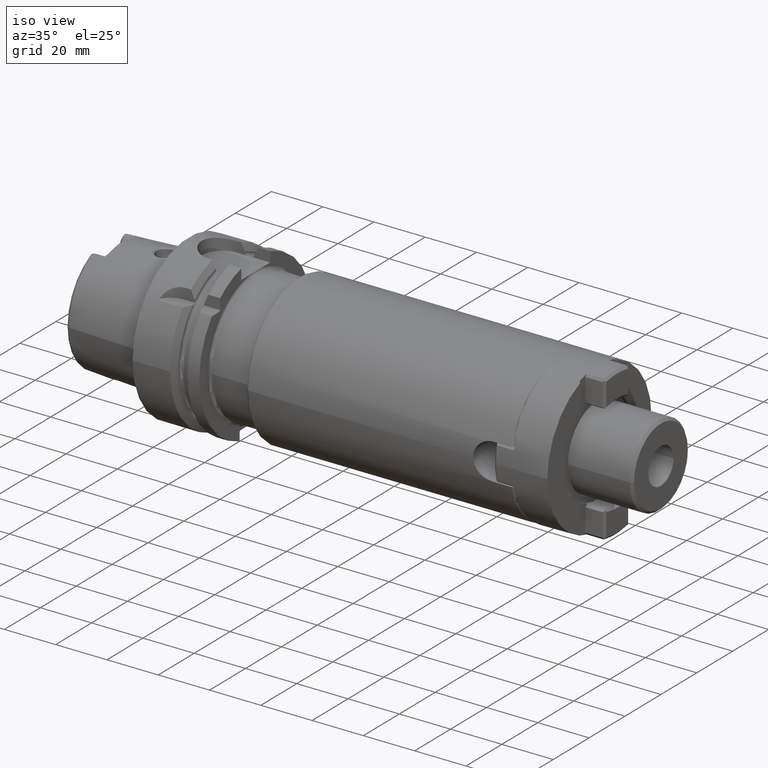
[diagram: clean part render]
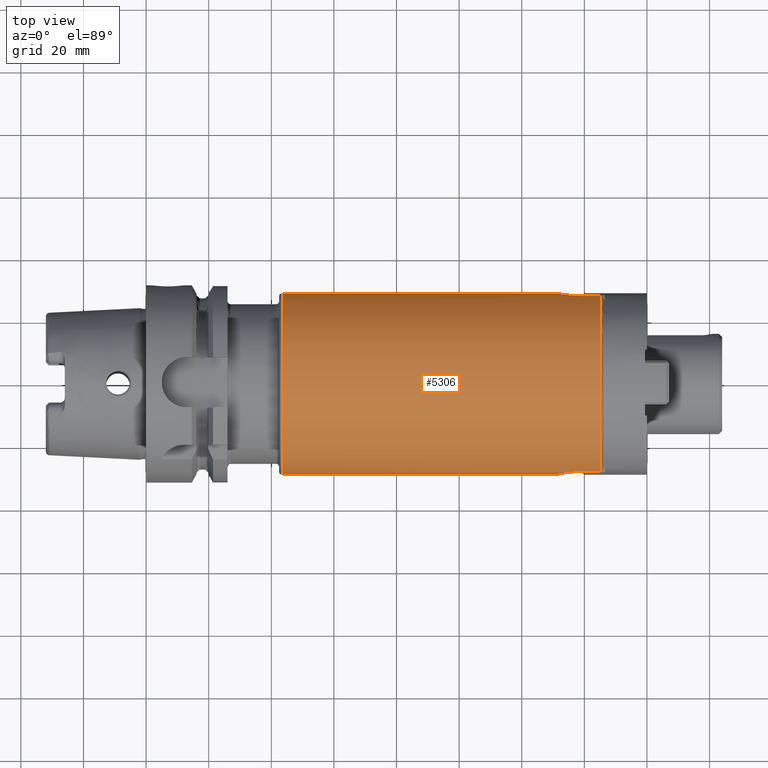
[diagram: tour spotlight — one face highlighted and labeled with its STEP entity id]
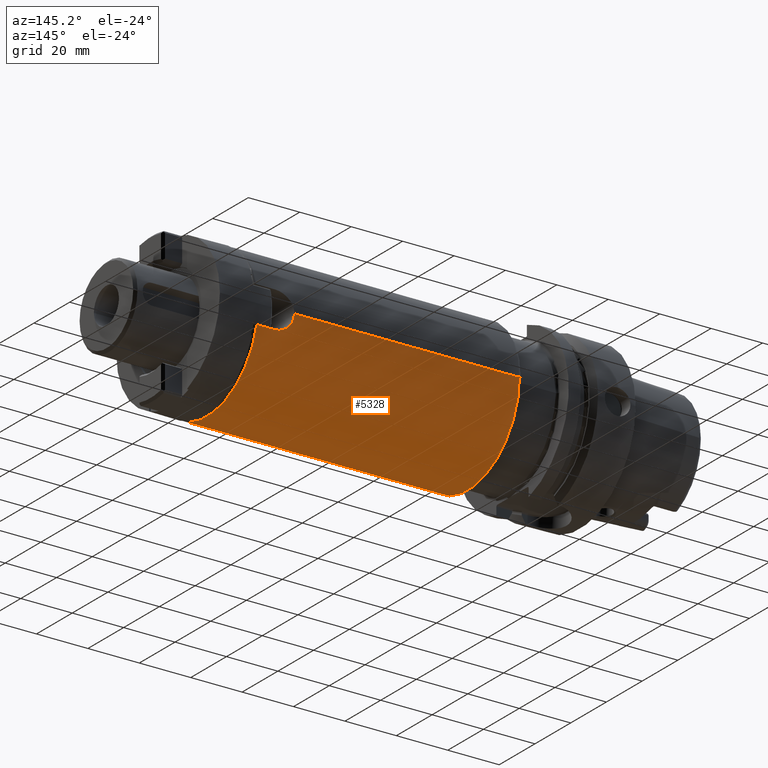
[diagram: tour spotlight — one face highlighted and labeled with its STEP entity id]
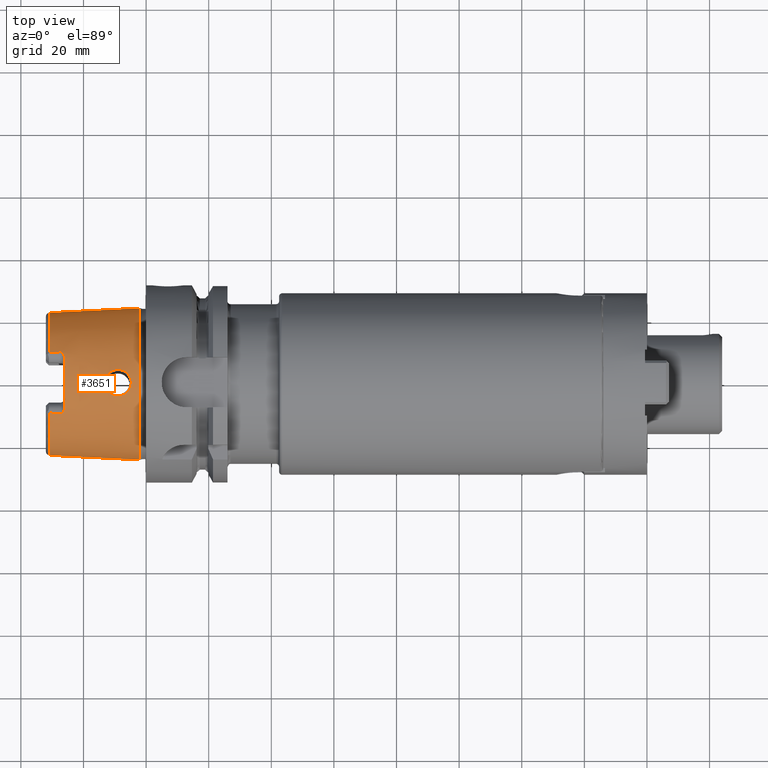
[diagram: tour spotlight — one face highlighted and labeled with its STEP entity id]
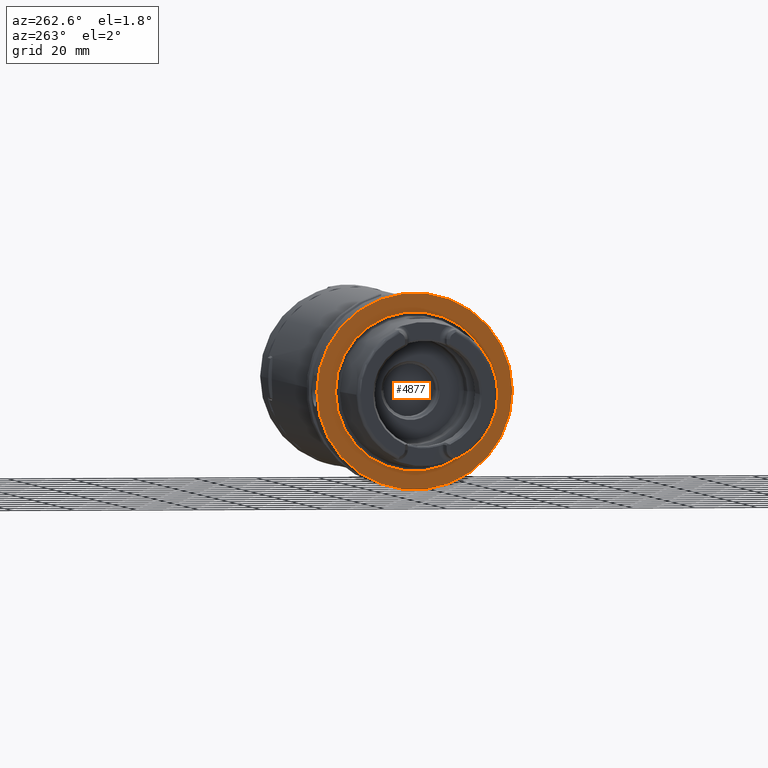
[diagram: tour spotlight — one face highlighted and labeled with its STEP entity id]
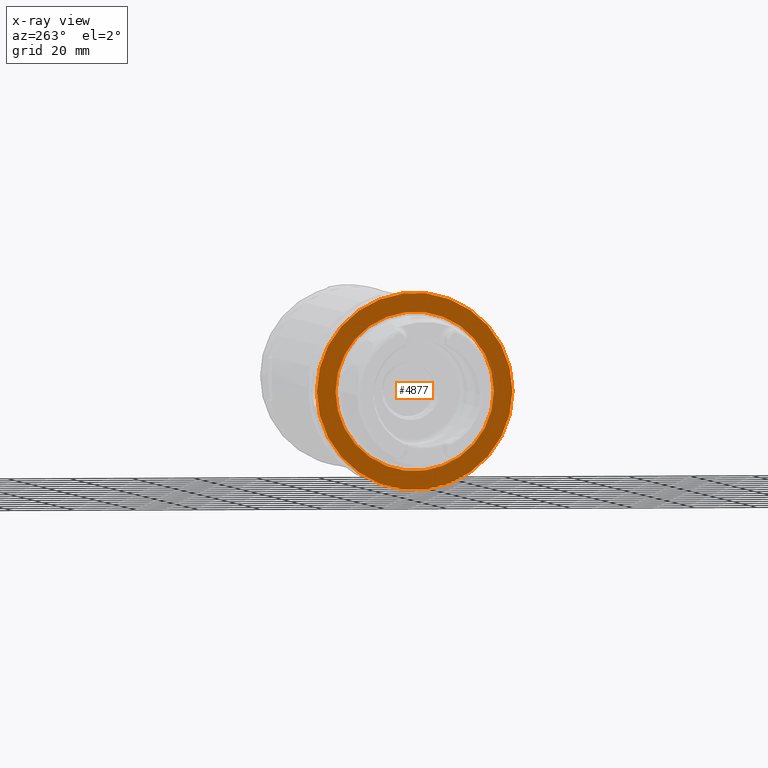
[diagram: x-ray of the same camera — body ghosted, this tour face saturated]
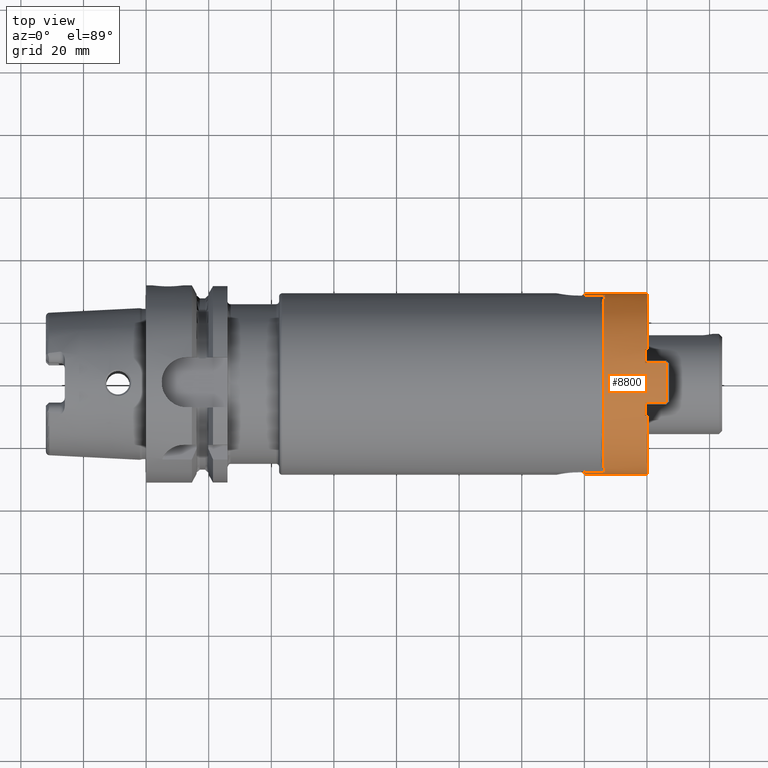
[diagram: tour spotlight — one face highlighted and labeled with its STEP entity id]
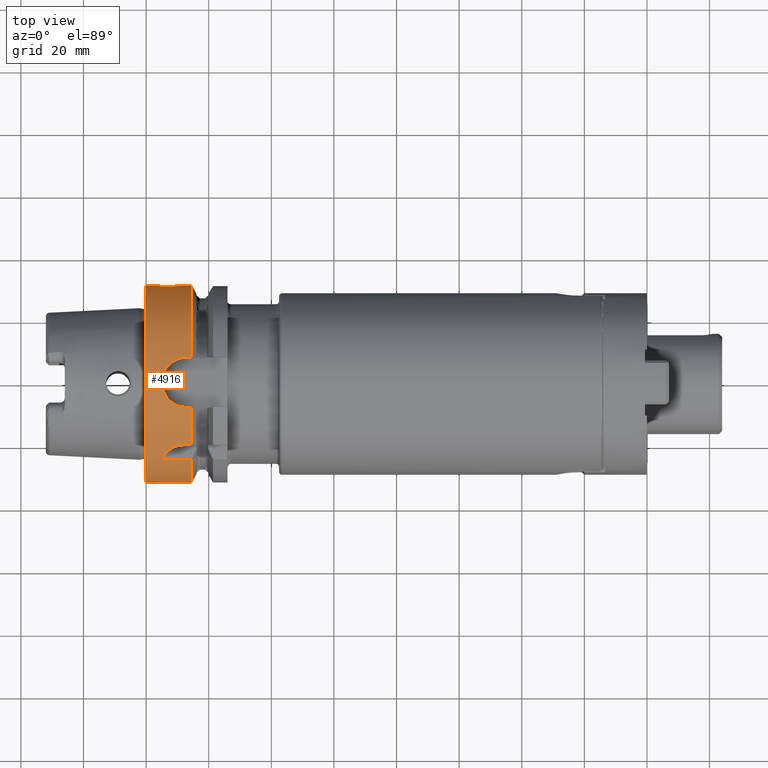
[diagram: tour spotlight — one face highlighted and labeled with its STEP entity id]
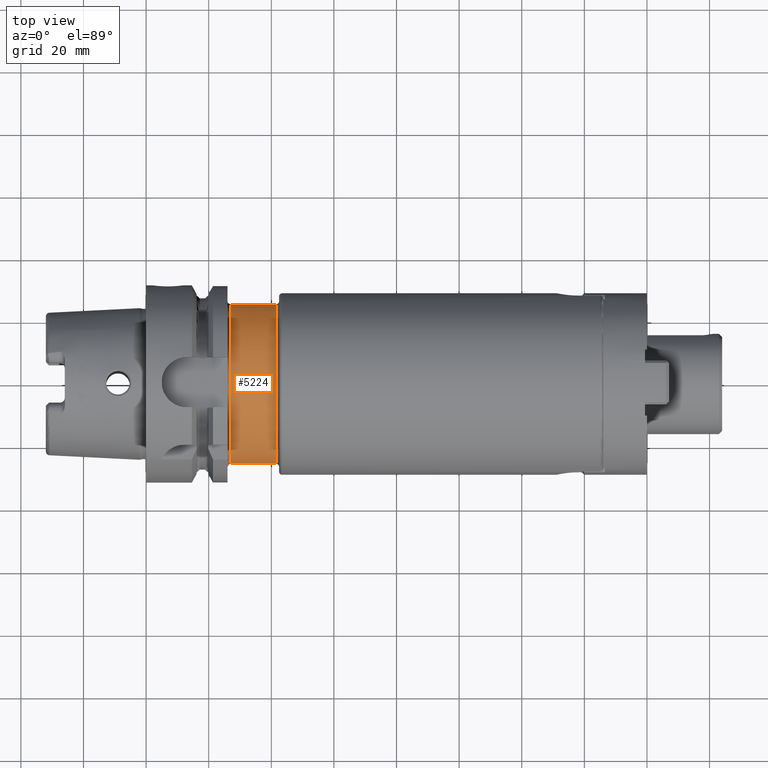
[diagram: tour spotlight — one face highlighted and labeled with its STEP entity id]
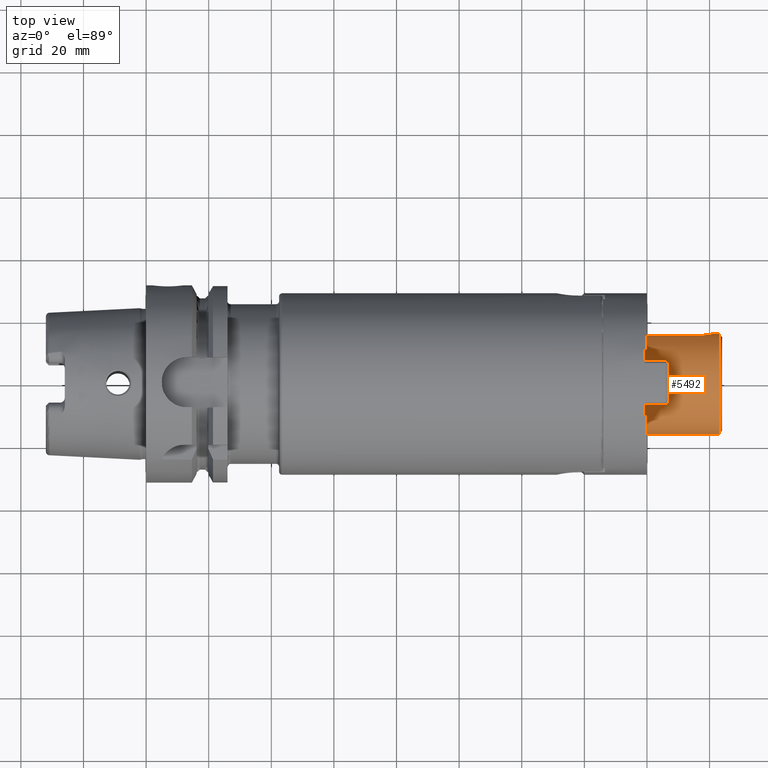
[diagram: tour spotlight — one face highlighted and labeled with its STEP entity id]
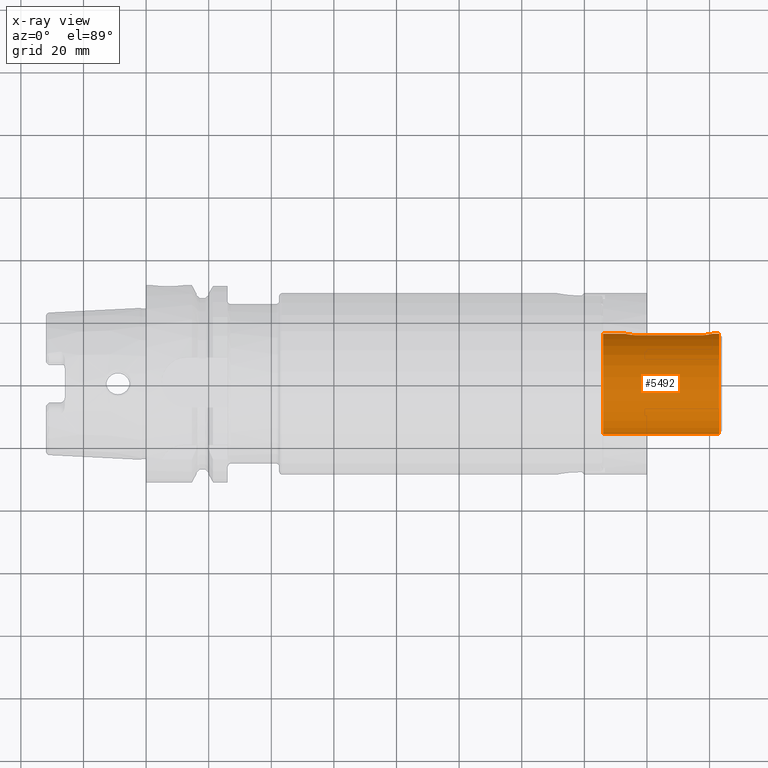
[diagram: x-ray of the same camera — body ghosted, this tour face saturated]
A machine part: a face-by-face anatomy tour. The part has 273 B-rep faces; the first image is the clean iso view, then the 8 largest visible faces are spotlighted one at a time (largest first), each with its STEP entity span.

Face 1 — top view, entity #5306. In plain terms, the highlighted cylindrical surface (partial cylindrical patch) has radius 29 mm, axis along (1, 0, 0).
Definition (entity closure, byte-faithful):
#1513=CARTESIAN_POINT('',(4.35E1,0.E0,0.E0));
#1514=DIRECTION('',(1.E0,0.E0,0.E0));
#1515=DIRECTION('',(0.E0,1.E0,0.E0));
#1516=AXIS2_PLACEMENT_3D('',#1513,#1514,#1515);
#1518=CARTESIAN_POINT('',(1.3805E2,2.813001066477E1,7.05E0));
#1519=CARTESIAN_POINT('',(1.377892845414E2,2.813001066477E1,7.05E0));
#1520=CARTESIAN_POINT('',(1.372704562985E2,2.813721170395E1,7.021365965933E0));
#1521=CARTESIAN_POINT('',(1.364932026695E2,2.816957575118E1,6.890943023567E0));
#1522=CARTESIAN_POINT('',(1.357373954806E2,2.822164112469E1,6.675496299468E0));
#1523=CARTESIAN_POINT('',(1.350023048045E2,2.829163371781E1,6.373701010529E0));
#1524=CARTESIAN_POINT('',(1.343068211495E2,2.837532745325E1,5.991891637590E0));
#1525=CARTESIAN_POINT('',(1.336519291984E2,2.846949598022E1,5.529356796061E0));
#1526=CARTESIAN_POINT('',(1.330548098988E2,2.856827169744E1,4.996371881267E0));
#1527=CARTESIAN_POINT('',(1.325211195883E2,2.866681374678E1,4.398677466930E0));
#1528=CARTESIAN_POINT('',(1.320590351517E2,2.875991218955E1,3.744616580607E0));
#1529=CARTESIAN_POINT('',(1.316768842916E2,2.884228304746E1,3.048966178433E0));
#1530=CARTESIAN_POINT('',(1.313749130758E2,2.891078409073E1,2.313771991974E0));
#1531=CARTESIAN_POINT('',(1.311593362814E2,2.896152191976E1,1.558072069682E0));
#1532=CARTESIAN_POINT('',(1.310286820599E2,2.899300595834E1,7.802460438831E-1));
#1533=CARTESIAN_POINT('',(1.31E2,2.9E1,2.609071222978E-1));
#1534=CARTESIAN_POINT('',(1.31E2,2.9E1,2.817009955924E-14));
#1536=DIRECTION('',(1.E0,0.E0,0.E0));
#1537=VECTOR('',#1536,6.95E0);
#1538=CARTESIAN_POINT('',(1.3805E2,2.813001066477E1,7.05E0));
#1539=LINE('',#1538,#1537);
#1540=CARTESIAN_POINT('',(1.45E2,0.E0,0.E0));
#1541=DIRECTION('',(-1.E0,0.E0,0.E0));
#1542=DIRECTION('',(0.E0,-9.700003677506E-1,2.431034482759E-1));
#1543=AXIS2_PLACEMENT_3D('',#1540,#1541,#1542);
#1545=DIRECTION('',(1.E0,0.E0,0.E0));
#1546=VECTOR('',#1545,6.95E0);
#1547=CARTESIAN_POINT('',(1.3805E2,-2.813001066477E1,7.05E0));
#1548=LINE('',#1547,#1546);
#1549=CARTESIAN_POINT('',(1.31E2,-2.9E1,2.485952645199E-14));
#1550=CARTESIAN_POINT('',(1.31E2,-2.9E1,2.609223924440E-1));
#1551=CARTESIAN_POINT('',(1.310286858744E2,-2.899300502789E1,
7.802830916035E-1));
#1552=CARTESIAN_POINT('',(1.311593428826E2,-2.896152035395E1,1.558098711640E0));
#1553=CARTESIAN_POINT('',(1.313749206378E2,-2.891078231274E1,2.313795517744E0));
#1554=CARTESIAN_POINT('',(1.316769008922E2,-2.884227940974E1,3.048999527339E0));
#1555=CARTESIAN_POINT('',(1.320590407890E2,-2.875991096468E1,3.744626057647E0));
#1556=CARTESIAN_POINT('',(1.325211436806E2,-2.866680913845E1,4.398707352475E0));
#1557=CARTESIAN_POINT('',(1.330548112164E2,-2.856827147018E1,4.996372731194E0));
#1558=CARTESIAN_POINT('',(1.336519504785E2,-2.846949266136E1,5.529374143816E0));
#1559=CARTESIAN_POINT('',(1.343068262147E2,-2.837532685153E1,5.991894173662E0));
#1560=CARTESIAN_POINT('',(1.350023166210E2,-2.829163241798E1,6.373706865742E0));
#1561=CARTESIAN_POINT('',(1.357374001499E2,-2.822164079925E1,6.675497596147E0));
#1562=CARTESIAN_POINT('',(1.364932065464E2,-2.816957554081E1,6.890943896653E0));
#1563=CARTESIAN_POINT('',(1.372704573429E2,-2.813721170093E1,7.021365970013E0));
#1564=CARTESIAN_POINT('',(1.377892848384E2,-2.813001066477E1,7.05E0));
#1565=CARTESIAN_POINT('',(1.3805E2,-2.813001066477E1,7.05E0));
#1572=DIRECTION('',(-1.E0,0.E0,0.E0));
#1573=VECTOR('',#1572,8.75E1);
#1574=CARTESIAN_POINT('',(1.31E2,-2.9E1,2.485952645199E-14));
#1575=LINE('',#1574,#1573);
#1625=DIRECTION('',(-1.E0,0.E0,0.E0));
#1626=VECTOR('',#1625,8.75E1);
#1627=CARTESIAN_POINT('',(1.31E2,2.9E1,2.817009955924E-14));
#1628=LINE('',#1627,#1626);
#3521=VERTEX_POINT('',#1518);
#3522=VERTEX_POINT('',#1534);
#3523=CARTESIAN_POINT('',(1.45E2,2.813001066477E1,7.05E0));
#3524=VERTEX_POINT('',#3523);
#3538=CARTESIAN_POINT('',(1.3805E2,-2.813001066477E1,7.05E0));
#3539=VERTEX_POINT('',#3538);
#3544=VERTEX_POINT('',#1549);
#3545=CARTESIAN_POINT('',(1.45E2,-2.813001066477E1,7.05E0));
#3546=VERTEX_POINT('',#3545);
#3602=CARTESIAN_POINT('',(4.35E1,2.9E1,0.E0));
#3603=CARTESIAN_POINT('',(4.35E1,-2.9E1,0.E0));
#3604=VERTEX_POINT('',#3602);
#3605=VERTEX_POINT('',#3603);
#5284=CARTESIAN_POINT('',(1.81E1,0.E0,0.E0));
#5285=DIRECTION('',(1.E0,0.E0,0.E0));
#5286=DIRECTION('',(0.E0,-1.E0,0.E0));
#5287=AXIS2_PLACEMENT_3D('',#5284,#5285,#5286);
#5288=CYLINDRICAL_SURFACE('',#5287,2.9E1);
#5289=ORIENTED_EDGE('',*,*,#5274,.F.);
#5291=ORIENTED_EDGE('',*,*,#5290,.F.);
#5293=ORIENTED_EDGE('',*,*,#5292,.F.);
#5295=ORIENTED_EDGE('',*,*,#5294,.T.);
#5297=ORIENTED_EDGE('',*,*,#5296,.F.);
#5299=ORIENTED_EDGE('',*,*,#5298,.F.);
#5301=ORIENTED_EDGE('',*,*,#5300,.F.);
#5303=ORIENTED_EDGE('',*,*,#5302,.T.);
#5304=EDGE_LOOP('',(#5289,#5291,#5293,#5295,#5297,#5299,#5301,#5303));
#5305=FACE_OUTER_BOUND('',#5304,.F.);
#5306=ADVANCED_FACE('',(#5305),#5288,.T.);
#1517=CIRCLE('',#1516,2.9E1);
#1535=B_SPLINE_CURVE_WITH_KNOTS('',3,(#1518,#1519,#1520,#1521,#1522,#1523,#1524,
#1525,#1526,#1527,#1528,#1529,#1530,#1531,#1532,#1533,#1534),.UNSPECIFIED.,.F.,
.F.,(4,1,1,1,1,1,1,1,1,1,1,1,1,1,4),(0.E0,7.142857142857E-2,1.428571428571E-1,
2.142857142857E-1,2.857142857143E-1,3.571428571429E-1,4.285714285714E-1,5.E-1,
5.714285714286E-1,6.428571428571E-1,7.142857142857E-1,7.857142857143E-1,
8.571428571429E-1,9.285714285714E-1,1.E0),.UNSPECIFIED.);
#1544=CIRCLE('',#1543,2.9E1);
#1566=B_SPLINE_CURVE_WITH_KNOTS('',3,(#1549,#1550,#1551,#1552,#1553,#1554,#1555,
#1556,#1557,#1558,#1559,#1560,#1561,#1562,#1563,#1564,#1565),.UNSPECIFIED.,.F.,
.F.,(4,1,1,1,1,1,1,1,1,1,1,1,1,1,4),(0.E0,7.142857142857E-2,1.428571428571E-1,
2.142857142857E-1,2.857142857143E-1,3.571428571429E-1,4.285714285714E-1,5.E-1,
5.714285714286E-1,6.428571428571E-1,7.142857142857E-1,7.857142857143E-1,
8.571428571429E-1,9.285714285714E-1,1.E0),.UNSPECIFIED.);
#5274=EDGE_CURVE('',#3604,#3605,#1517,.T.);
#5290=EDGE_CURVE('',#3522,#3604,#1628,.T.);
#5292=EDGE_CURVE('',#3521,#3522,#1535,.T.);
#5294=EDGE_CURVE('',#3521,#3524,#1539,.T.);
#5296=EDGE_CURVE('',#3546,#3524,#1544,.T.);
#5298=EDGE_CURVE('',#3539,#3546,#1548,.T.);
#5300=EDGE_CURVE('',#3544,#3539,#1566,.T.);
#5302=EDGE_CURVE('',#3544,#3605,#1575,.T.);

Face 2 — auxiliary view, entity #5328. In plain terms, the highlighted cylindrical surface (partial cylindrical patch) has radius 29 mm, axis along (1, 0, 0).
Definition (entity closure, byte-faithful):
#1534=CARTESIAN_POINT('',(1.31E2,2.9E1,2.817009955924E-14));
#1549=CARTESIAN_POINT('',(1.31E2,-2.9E1,2.485952645199E-14));
#1567=CARTESIAN_POINT('',(4.35E1,0.E0,0.E0));
#1568=DIRECTION('',(1.E0,0.E0,0.E0));
#1569=DIRECTION('',(0.E0,-1.E0,0.E0));
#1570=AXIS2_PLACEMENT_3D('',#1567,#1568,#1569);
#1572=DIRECTION('',(-1.E0,0.E0,0.E0));
#1573=VECTOR('',#1572,8.75E1);
#1574=CARTESIAN_POINT('',(1.31E2,-2.9E1,2.485952645199E-14));
#1575=LINE('',#1574,#1573);
#1576=CARTESIAN_POINT('',(1.3805E2,-2.813001066477E1,-7.05E0));
#1577=CARTESIAN_POINT('',(1.377893035842E2,-2.813001066477E1,-7.05E0));
#1578=CARTESIAN_POINT('',(1.372705027397E2,-2.813720996417E1,
-7.021372998129E0));
#1579=CARTESIAN_POINT('',(1.364931725090E2,-2.816957738295E1,
-6.890936313131E0));
#1580=CARTESIAN_POINT('',(1.357374279173E2,-2.822163863997E1,
-6.675506675934E0));
#1581=CARTESIAN_POINT('',(1.350022770570E2,-2.829163614758E1,
-6.373691118784E0));
#1582=CARTESIAN_POINT('',(1.343068033639E2,-2.837533057367E1,
-5.991874765115E0));
#1583=CARTESIAN_POINT('',(1.336519929213E2,-2.846948569922E1,
-5.529412198863E0));
#1584=CARTESIAN_POINT('',(1.330547438381E2,-2.856828333595E1,
-4.996303182920E0));
#1585=CARTESIAN_POINT('',(1.325212076332E2,-2.866679709847E1,
-4.398784404230E0));
#1586=CARTESIAN_POINT('',(1.320590229686E2,-2.875991442362E1,
-3.744601839930E0));
#1587=CARTESIAN_POINT('',(1.316769402268E2,-2.884227096134E1,
-3.049070532258E0));
#1588=CARTESIAN_POINT('',(1.313749512631E2,-2.891077512780E1,
-2.313891373376E0));
#1589=CARTESIAN_POINT('',(1.311593576758E2,-2.896151684499E1,
-1.558153483063E0));
#1590=CARTESIAN_POINT('',(1.310287056574E2,-2.899300022739E1,
-7.804529073166E-1));
#1591=CARTESIAN_POINT('',(1.31E2,-2.9E1,-2.609927957127E-1));
#1592=CARTESIAN_POINT('',(1.31E2,-2.9E1,2.485952645199E-14));
#1594=DIRECTION('',(1.E0,0.E0,0.E0));
#1595=VECTOR('',#1594,6.95E0);
#1596=CARTESIAN_POINT('',(1.3805E2,-2.813001066477E1,-7.05E0));
#1597=LINE('',#1596,#1595);
#1598=CARTESIAN_POINT('',(1.45E2,0.E0,0.E0));
#1599=DIRECTION('',(-1.E0,0.E0,0.E0));
#1600=DIRECTION('',(0.E0,9.700003677506E-1,-2.431034482759E-1));
#1601=AXIS2_PLACEMENT_3D('',#1598,#1599,#1600);
#1603=DIRECTION('',(1.E0,0.E0,0.E0));
#1604=VECTOR('',#1603,6.95E0);
#1605=CARTESIAN_POINT('',(1.3805E2,2.813001066477E1,-7.05E0));
#1606=LINE('',#1605,#1604);
#1607=CARTESIAN_POINT('',(1.31E2,2.9E1,2.817009955924E-14));
#1608=CARTESIAN_POINT('',(1.31E2,2.9E1,-2.610091686743E-1));
#1609=CARTESIAN_POINT('',(1.310287098241E2,2.899299921206E1,
-7.804926488651E-1));
#1610=CARTESIAN_POINT('',(1.311593642768E2,2.896151527842E1,-1.558180073403E0));
#1611=CARTESIAN_POINT('',(1.313749594785E2,2.891077319918E1,-2.313916844599E0));
#1612=CARTESIAN_POINT('',(1.316769569922E2,2.884226728684E1,-3.049104151826E0));
#1613=CARTESIAN_POINT('',(1.320590291949E2,2.875991307734E1,-3.744612257243E0));
#1614=CARTESIAN_POINT('',(1.325212317712E2,2.866679247921E1,-4.398814361099E0));
#1615=CARTESIAN_POINT('',(1.330547464481E2,2.856828287688E1,-4.996305398192E0));
#1616=CARTESIAN_POINT('',(1.336520158177E2,2.846948212660E1,-5.529430844241E0));
#1617=CARTESIAN_POINT('',(1.343068104510E2,2.837532971148E1,-5.991878522633E0));
#1618=CARTESIAN_POINT('',(1.350022896663E2,2.829163476123E1,-6.373697351171E0));
#1619=CARTESIAN_POINT('',(1.357374343985E2,2.822163816805E1,-6.675508592208E0));
#1620=CARTESIAN_POINT('',(1.364931767259E2,2.816957715938E1,-6.890937235772E0));
#1621=CARTESIAN_POINT('',(1.372705047960E2,2.813720992971E1,-7.021373129419E0));
#1622=CARTESIAN_POINT('',(1.377893042592E2,2.813001066477E1,-7.05E0));
#1623=CARTESIAN_POINT('',(1.3805E2,2.813001066477E1,-7.05E0));
#1625=DIRECTION('',(-1.E0,0.E0,0.E0));
#1626=VECTOR('',#1625,8.75E1);
#1627=CARTESIAN_POINT('',(1.31E2,2.9E1,2.817009955924E-14));
#1628=LINE('',#1627,#1626);
#3522=VERTEX_POINT('',#1534);
#3525=VERTEX_POINT('',#1623);
#3526=CARTESIAN_POINT('',(1.45E2,2.813001066477E1,-7.05E0));
#3527=VERTEX_POINT('',#3526);
#3536=CARTESIAN_POINT('',(1.3805E2,-2.813001066477E1,-7.05E0));
#3537=VERTEX_POINT('',#3536);
#3544=VERTEX_POINT('',#1549);
#3547=CARTESIAN_POINT('',(1.45E2,-2.813001066477E1,-7.05E0));
#3548=VERTEX_POINT('',#3547);
#3602=CARTESIAN_POINT('',(4.35E1,2.9E1,0.E0));
#3603=CARTESIAN_POINT('',(4.35E1,-2.9E1,0.E0));
#3604=VERTEX_POINT('',#3602);
#3605=VERTEX_POINT('',#3603);
#5307=CARTESIAN_POINT('',(1.81E1,0.E0,0.E0));
#5308=DIRECTION('',(1.E0,0.E0,0.E0));
#5309=DIRECTION('',(0.E0,-1.E0,0.E0));
#5310=AXIS2_PLACEMENT_3D('',#5307,#5308,#5309);
#5311=CYLINDRICAL_SURFACE('',#5310,2.9E1);
#5313=ORIENTED_EDGE('',*,*,#5312,.F.);
#5314=ORIENTED_EDGE('',*,*,#5302,.F.);
#5316=ORIENTED_EDGE('',*,*,#5315,.F.);
#5318=ORIENTED_EDGE('',*,*,#5317,.T.);
#5320=ORIENTED_EDGE('',*,*,#5319,.F.);
#5322=ORIENTED_EDGE('',*,*,#5321,.F.);
#5324=ORIENTED_EDGE('',*,*,#5323,.F.);
#5325=ORIENTED_EDGE('',*,*,#5290,.T.);
#5326=EDGE_LOOP('',(#5313,#5314,#5316,#5318,#5320,#5322,#5324,#5325));
#5327=FACE_OUTER_BOUND('',#5326,.F.);
#5328=ADVANCED_FACE('',(#5327),#5311,.T.);
#1571=CIRCLE('',#1570,2.9E1);
#1593=B_SPLINE_CURVE_WITH_KNOTS('',3,(#1576,#1577,#1578,#1579,#1580,#1581,#1582,
#1583,#1584,#1585,#1586,#1587,#1588,#1589,#1590,#1591,#1592),.UNSPECIFIED.,.F.,
.F.,(4,1,1,1,1,1,1,1,1,1,1,1,1,1,4),(0.E0,7.142857142857E-2,1.428571428571E-1,
2.142857142857E-1,2.857142857143E-1,3.571428571429E-1,4.285714285714E-1,5.E-1,
5.714285714286E-1,6.428571428571E-1,7.142857142857E-1,7.857142857143E-1,
8.571428571429E-1,9.285714285714E-1,1.E0),.UNSPECIFIED.);
#1602=CIRCLE('',#1601,2.9E1);
#1624=B_SPLINE_CURVE_WITH_KNOTS('',3,(#1607,#1608,#1609,#1610,#1611,#1612,#1613,
#1614,#1615,#1616,#1617,#1618,#1619,#1620,#1621,#1622,#1623),.UNSPECIFIED.,.F.,
.F.,(4,1,1,1,1,1,1,1,1,1,1,1,1,1,4),(0.E0,7.142857142857E-2,1.428571428571E-1,
2.142857142857E-1,2.857142857143E-1,3.571428571429E-1,4.285714285714E-1,5.E-1,
5.714285714286E-1,6.428571428571E-1,7.142857142857E-1,7.857142857143E-1,
8.571428571429E-1,9.285714285714E-1,1.E0),.UNSPECIFIED.);
#5290=EDGE_CURVE('',#3522,#3604,#1628,.T.);
#5302=EDGE_CURVE('',#3544,#3605,#1575,.T.);
#5312=EDGE_CURVE('',#3605,#3604,#1571,.T.);
#5315=EDGE_CURVE('',#3537,#3544,#1593,.T.);
#5317=EDGE_CURVE('',#3537,#3548,#1597,.T.);
#5319=EDGE_CURVE('',#3527,#3548,#1602,.T.);
#5321=EDGE_CURVE('',#3525,#3527,#1606,.T.);
#5323=EDGE_CURVE('',#3522,#3525,#1624,.T.);

Face 3 — top view, entity #3651. In plain terms, the highlighted conical surface has half-angle 2.868 deg.
Definition (entity closure, byte-faithful):
#2=CARTESIAN_POINT('',(-3.086004306431E1,-9.562027931336E0,2.067E1));
#3=CARTESIAN_POINT('',(-3.049253157278E1,-9.605880711653E0,2.067E1));
#4=CARTESIAN_POINT('',(-2.975362396220E1,-9.693552821268E0,2.067E1));
#5=CARTESIAN_POINT('',(-2.863363692789E1,-9.824971306479E0,2.067E1));
#6=CARTESIAN_POINT('',(-2.787917629619E1,-9.912538799101E0,2.067E1));
#7=CARTESIAN_POINT('',(-2.75E1,-9.956312881929E0,2.067E1));
#9=CARTESIAN_POINT('',(-2.6E1,0.E0,0.E0));
#10=DIRECTION('',(1.E0,0.E0,0.E0));
#11=DIRECTION('',(0.E0,3.233021702202E-1,9.462957818415E-1));
#12=AXIS2_PLACEMENT_3D('',#9,#10,#11);
#14=CARTESIAN_POINT('',(-2.75E1,9.956312881929E0,2.067E1));
#15=CARTESIAN_POINT('',(-2.787916500946E1,9.912540102101E0,2.067E1));
#16=CARTESIAN_POINT('',(-2.863361059702E1,9.824974374327E0,2.067E1));
#17=CARTESIAN_POINT('',(-2.975359777716E1,9.693555915617E0,2.067E1));
#18=CARTESIAN_POINT('',(-3.049252035285E1,9.605882050456E0,2.067E1));
#19=CARTESIAN_POINT('',(-3.086004306431E1,9.562027931336E0,2.067E1));
#21=CARTESIAN_POINT('',(-2.E0,0.E0,0.E0));
#22=DIRECTION('',(1.E0,0.E0,0.E0));
#23=DIRECTION('',(0.E0,1.E0,0.E0));
#24=AXIS2_PLACEMENT_3D('',#21,#22,#23);
#26=CARTESIAN_POINT('',(-1.324941786023E1,-7.219004501044E-9,2.365679941218E1));
#27=CARTESIAN_POINT('',(-1.324962652857E1,2.128419836803E-1,2.365678895818E1));
#28=CARTESIAN_POINT('',(-1.321789572653E1,6.392154004916E-1,2.365279437370E1));
#29=CARTESIAN_POINT('',(-1.306583173353E1,1.295455377947E0,2.363353567605E1));
#30=CARTESIAN_POINT('',(-1.280774848226E1,1.924363159712E0,2.360322882883E1));
#31=CARTESIAN_POINT('',(-1.245682539685E1,2.498002640667E0,2.356658532007E1));
#32=CARTESIAN_POINT('',(-1.202590717647E1,3.003748276320E0,2.352875153285E1));
#33=CARTESIAN_POINT('',(-1.151587453193E1,3.440667161266E0,2.349418467003E1));
#34=CARTESIAN_POINT('',(-1.094488701051E1,3.790928519035E0,2.346872738592E1));
#35=CARTESIAN_POINT('',(-1.032606556195E1,4.047968073685E0,2.345686676513E1));
#36=CARTESIAN_POINT('',(-9.674487886290E0,4.205448144478E0,2.346208039452E1));
#37=CARTESIAN_POINT('',(-9.005382482159E0,4.259666064034E0,2.348629251751E1));
#38=CARTESIAN_POINT('',(-8.334406518885E0,4.208654245636E0,2.352972397238E1));
#39=CARTESIAN_POINT('',(-7.678583145358E0,4.052835118832E0,2.359064506703E1));
#40=CARTESIAN_POINT('',(-7.054746219975E0,3.795297178824E0,2.366546684138E1));
#41=CARTESIAN_POINT('',(-6.478384090661E0,3.441929617339E0,2.374909717224E1));
#42=CARTESIAN_POINT('',(-5.963720829785E0,2.998888105398E0,2.383556837714E1));
#43=CARTESIAN_POINT('',(-5.531697254110E0,2.487245477785E0,2.391660020727E1));
#44=CARTESIAN_POINT('',(-5.183622696567E0,1.910877761534E0,2.398748891792E1));
#45=CARTESIAN_POINT('',(-4.930520871648E0,1.285429316774E0,2.404215083473E1));
#46=CARTESIAN_POINT('',(-4.781592632661E0,6.352567731875E-1,2.407559904029E1));
#47=CARTESIAN_POINT('',(-4.750478792548E0,2.114683342023E-1,2.408258846670E1));
#48=CARTESIAN_POINT('',(-4.750585905229E0,7.197553449570E-9,2.408258310050E1));
#50=CARTESIAN_POINT('',(-4.750585905229E0,7.197553449570E-9,2.408258310050E1));
#51=CARTESIAN_POINT('',(-4.750395627959E0,-2.105069288240E-1,2.408259263313E1));
#52=CARTESIAN_POINT('',(-4.781309836194E0,-6.330630552620E-1,2.407566909301E1));
#53=CARTESIAN_POINT('',(-4.930068182376E0,-1.284334675678E0,2.404224817580E1));
#54=CARTESIAN_POINT('',(-5.183732271360E0,-1.911208248299E0,2.398746160179E1));
#55=CARTESIAN_POINT('',(-5.531554832014E0,-2.486758661206E0,2.391664059803E1));
#56=CARTESIAN_POINT('',(-5.960736101322E0,-2.995606004120E0,2.383611484308E1));
#57=CARTESIAN_POINT('',(-6.472413726219E0,-3.437431533938E0,2.375005151539E1));
#58=CARTESIAN_POINT('',(-7.047774921505E0,-3.791791568104E0,2.366638920783E1));
#59=CARTESIAN_POINT('',(-7.671990993959E0,-4.050736119112E0,2.359134441504E1));
#60=CARTESIAN_POINT('',(-8.327799970975E0,-4.207619640495E0,2.353024681340E1));
#61=CARTESIAN_POINT('',(-8.998662135271E0,-4.259680399888E0,2.348663216787E1));
#62=CARTESIAN_POINT('',(-9.668037445633E0,-4.206488328283E0,2.346222081393E1));
#63=CARTESIAN_POINT('',(-1.031990079178E1,-4.049961979503E0,2.345683302195E1));
#64=CARTESIAN_POINT('',(-1.093870323089E1,-3.794046262990E0,2.346853209808E1));
#65=CARTESIAN_POINT('',(-1.151051650685E1,-3.444658410973E0,2.349386945058E1));
#66=CARTESIAN_POINT('',(-1.202283712979E1,-3.007012911900E0,2.352850073603E1));
#67=CARTESIAN_POINT('',(-1.245609200384E1,-2.499248587590E0,2.356650362943E1));
#68=CARTESIAN_POINT('',(-1.280745559330E1,-1.924878595842E0,2.360319856514E1));
#69=CARTESIAN_POINT('',(-1.306526541006E1,-1.297000138509E0,2.363346880977E1));
#70=CARTESIAN_POINT('',(-1.321765204718E1,-6.412116938996E-1,2.365275767433E1));
#71=CARTESIAN_POINT('',(-1.324954460014E1,-2.136894906074E-1,2.365679306269E1));
#72=CARTESIAN_POINT('',(-1.324941786023E1,-7.219004501044E-9,2.365679941218E1));
#82=CARTESIAN_POINT('',(-2.651259296226E1,-9.27E0,2.104082891384E1));
#83=CARTESIAN_POINT('',(-2.655060528934E1,-9.340723960488E0,2.100758892059E1));
#84=CARTESIAN_POINT('',(-2.663038504623E1,-9.471838743333E0,2.094458948833E1));
#85=CARTESIAN_POINT('',(-2.676092291608E1,-9.637362323001E0,2.086163997968E1));
#86=CARTESIAN_POINT('',(-2.690131837165E1,-9.770899105642E0,2.079157611E1));
#87=CARTESIAN_POINT('',(-2.705226454993E1,-9.871852756963E0,2.073538687848E1));
#88=CARTESIAN_POINT('',(-2.720441776005E1,-9.934823835429E0,2.069678496112E1));
#89=CARTESIAN_POINT('',(-2.735189841416E1,-9.963277454574E0,2.067488149845E1));
#90=CARTESIAN_POINT('',(-2.745092740764E1,-9.961978077101E0,2.067E1));
#91=CARTESIAN_POINT('',(-2.75E1,-9.956312881929E0,2.067E1));
#93=CARTESIAN_POINT('',(-2.6E1,-7.441787718571E0,2.178189005860E1));
#94=CARTESIAN_POINT('',(-2.6E1,-7.574673232080E0,2.173648969253E1));
#95=CARTESIAN_POINT('',(-2.601813511197E1,-7.850865569829E0,2.163846841914E1));
#96=CARTESIAN_POINT('',(-2.610760114915E1,-8.297034966034E0,2.146679982993E1));
#97=CARTESIAN_POINT('',(-2.626559360892E1,-8.768529603152E0,2.127027062942E1));
#98=CARTESIAN_POINT('',(-2.642147165719E1,-9.100463955368E0,2.112051021193E1));
#99=CARTESIAN_POINT('',(-2.651259296226E1,-9.27E0,2.104082891384E1));
#185=CARTESIAN_POINT('',(-3.086004306431E1,0.E0,0.E0));
#186=DIRECTION('',(1.E0,0.E0,0.E0));
#187=DIRECTION('',(0.E0,1.E0,0.E0));
#188=AXIS2_PLACEMENT_3D('',#185,#186,#187);
#196=CARTESIAN_POINT('',(-3.086004306431E1,9.562027931336E0,2.067E1));
#261=CARTESIAN_POINT('',(-3.086004306431E1,0.E0,0.E0));
#262=DIRECTION('',(1.E0,0.E0,0.E0));
#263=DIRECTION('',(0.E0,-4.198553792210E-1,9.075910205259E-1));
#264=AXIS2_PLACEMENT_3D('',#261,#262,#263);
#457=CARTESIAN_POINT('',(-2.651259296226E1,9.27E0,2.104082891384E1));
#458=CARTESIAN_POINT('',(-2.642147038701E1,9.100461592138E0,2.112051132264E1));
#459=CARTESIAN_POINT('',(-2.626559126698E1,8.768524006326E0,2.127027307791E1));
#460=CARTESIAN_POINT('',(-2.610760038346E1,8.297031203136E0,2.146680127908E1));
#461=CARTESIAN_POINT('',(-2.601813556642E1,7.850867870131E0,2.163846753656E1));
#462=CARTESIAN_POINT('',(-2.6E1,7.574674433427E0,2.173648928209E1));
#463=CARTESIAN_POINT('',(-2.6E1,7.441787718571E0,2.178189005860E1));
#497=CARTESIAN_POINT('',(-2.75E1,9.956312881929E0,2.067E1));
#498=CARTESIAN_POINT('',(-2.745017853421E1,9.962064530943E0,2.067E1));
#499=CARTESIAN_POINT('',(-2.734992708669E1,9.963297705486E0,2.067498167063E1));
#500=CARTESIAN_POINT('',(-2.719976747307E1,9.933459927686E0,2.069769932459E1));
#501=CARTESIAN_POINT('',(-2.704939607884E1,9.870085988272E0,2.073638612523E1));
#502=CARTESIAN_POINT('',(-2.690048936387E1,9.770127639355E0,2.079198258623E1));
#503=CARTESIAN_POINT('',(-2.676049508867E1,9.636879759274E0,2.086188624037E1));
#504=CARTESIAN_POINT('',(-2.663016689843E1,9.471495400784E0,2.094475592633E1));
#505=CARTESIAN_POINT('',(-2.655053916050E1,9.340600924250E0,2.100764674716E1));
#506=CARTESIAN_POINT('',(-2.651259296226E1,9.27E0,2.104082891384E1));
#763=DIRECTION('',(-9.987474205320E-1,5.003588692862E-2,0.E0));
#764=VECTOR('',#763,2.889623789861E1);
#765=CARTESIAN_POINT('',(-2.E0,-2.422042414966E1,0.E0));
#766=LINE('',#765,#764);
#772=DIRECTION('',(-9.987474205320E-1,-5.003588692862E-2,0.E0));
#773=VECTOR('',#772,2.889623789861E1);
#774=CARTESIAN_POINT('',(-2.E0,2.422042414966E1,0.E0));
#775=LINE('',#774,#773);
#3083=CARTESIAN_POINT('',(-2.E0,2.422042414966E1,0.E0));
#3084=CARTESIAN_POINT('',(-2.E0,-2.422042414966E1,0.E0));
#3085=VERTEX_POINT('',#3083);
#3086=VERTEX_POINT('',#3084);
#3087=CARTESIAN_POINT('',(-3.086004306431E1,2.277457525750E1,0.E0));
#3088=VERTEX_POINT('',#3087);
#3089=CARTESIAN_POINT('',(-3.086004306431E1,-2.277457525750E1,0.E0));
#3090=VERTEX_POINT('',#3089);
#3128=VERTEX_POINT('',#196);
#3129=CARTESIAN_POINT('',(-3.086004306431E1,-9.562027931336E0,2.067E1));
#3130=VERTEX_POINT('',#3129);
#3140=CARTESIAN_POINT('',(-2.6E1,7.441787718571E0,2.178189005860E1));
#3141=VERTEX_POINT('',#3140);
#3144=CARTESIAN_POINT('',(-2.75E1,9.956312881929E0,2.067E1));
#3145=VERTEX_POINT('',#3144);
#3146=CARTESIAN_POINT('',(-2.6E1,-7.441787718571E0,2.178189005860E1));
#3147=VERTEX_POINT('',#3146);
#3150=CARTESIAN_POINT('',(-2.75E1,-9.956312881929E0,2.067E1));
#3151=VERTEX_POINT('',#3150);
#3152=VERTEX_POINT('',#506);
#3153=VERTEX_POINT('',#82);
#3294=VERTEX_POINT('',#26);
#3295=VERTEX_POINT('',#48);
#3614=CARTESIAN_POINT('',(-1.643002153216E1,0.E0,0.E0));
#3615=DIRECTION('',(1.E0,0.E0,0.E0));
#3616=DIRECTION('',(0.E0,-1.E0,0.E0));
#3617=AXIS2_PLACEMENT_3D('',#3614,#3615,#3616);
#3618=CONICAL_SURFACE('',#3617,2.349749970358E1,2.868042729042E0);
#3620=ORIENTED_EDGE('',*,*,#3619,.T.);
#3622=ORIENTED_EDGE('',*,*,#3621,.F.);
#3624=ORIENTED_EDGE('',*,*,#3623,.F.);
#3626=ORIENTED_EDGE('',*,*,#3625,.F.);
#3628=ORIENTED_EDGE('',*,*,#3627,.F.);
#3630=ORIENTED_EDGE('',*,*,#3629,.F.);
#3632=ORIENTED_EDGE('',*,*,#3631,.T.);
#3634=ORIENTED_EDGE('',*,*,#3633,.F.);
#3636=ORIENTED_EDGE('',*,*,#3635,.F.);
#3638=ORIENTED_EDGE('',*,*,#3637,.T.);
#3640=ORIENTED_EDGE('',*,*,#3639,.T.);
#3642=ORIENTED_EDGE('',*,*,#3641,.F.);
#3643=EDGE_LOOP('',(#3620,#3622,#3624,#3626,#3628,#3630,#3632,#3634,#3636,#3638,
#3640,#3642));
#3644=FACE_OUTER_BOUND('',#3643,.F.);
#3646=ORIENTED_EDGE('',*,*,#3645,.F.);
#3648=ORIENTED_EDGE('',*,*,#3647,.F.);
#3649=EDGE_LOOP('',(#3646,#3648));
#3650=FACE_BOUND('',#3649,.F.);
#3651=ADVANCED_FACE('',(#3644,#3650),#3618,.T.);
#8=B_SPLINE_CURVE_WITH_KNOTS('',3,(#2,#3,#4,#5,#6,#7),.UNSPECIFIED.,.F.,.F.,(4,
1,1,4),(0.E0,3.333333333333E-1,6.666666666667E-1,1.E0),.UNSPECIFIED.);
#13=CIRCLE('',#12,2.301805680272E1);
#20=B_SPLINE_CURVE_WITH_KNOTS('',3,(#14,#15,#16,#17,#18,#19),.UNSPECIFIED.,.F.,
.F.,(4,1,1,4),(0.E0,3.333333333333E-1,6.666666666667E-1,1.E0),.UNSPECIFIED.);
#25=CIRCLE('',#24,2.422042414966E1);
#49=B_SPLINE_CURVE_WITH_KNOTS('',3,(#26,#27,#28,#29,#30,#31,#32,#33,#34,#35,#36,
#37,#38,#39,#40,#41,#42,#43,#44,#45,#46,#47,#48),.UNSPECIFIED.,.F.,.F.,(4,1,1,1,
1,1,1,1,1,1,1,1,1,1,1,1,1,1,1,1,4),(0.E0,5.E-2,1.E-1,1.5E-1,2.E-1,2.5E-1,3.E-1,
3.5E-1,4.E-1,4.5E-1,5.E-1,5.5E-1,6.E-1,6.5E-1,7.E-1,7.5E-1,8.E-1,8.5E-1,9.E-1,
9.5E-1,1.E0),.UNSPECIFIED.);
#73=B_SPLINE_CURVE_WITH_KNOTS('',3,(#50,#51,#52,#53,#54,#55,#56,#57,#58,#59,#60,
#61,#62,#63,#64,#65,#66,#67,#68,#69,#70,#71,#72),.UNSPECIFIED.,.F.,.F.,(4,1,1,1,
1,1,1,1,1,1,1,1,1,1,1,1,1,1,1,1,4),(0.E0,5.E-2,1.E-1,1.5E-1,2.E-1,2.5E-1,3.E-1,
3.5E-1,4.E-1,4.5E-1,5.E-1,5.5E-1,6.E-1,6.5E-1,7.E-1,7.5E-1,8.E-1,8.5E-1,9.E-1,
9.5E-1,1.E0),.UNSPECIFIED.);
#92=B_SPLINE_CURVE_WITH_KNOTS('',3,(#82,#83,#84,#85,#86,#87,#88,#89,#90,#91),
.UNSPECIFIED.,.F.,.F.,(4,1,1,1,1,1,1,4),(0.E0,1.428571428571E-1,
2.857142857143E-1,4.285714285714E-1,5.714285714286E-1,7.142857142857E-1,
8.571428571429E-1,1.E0),.UNSPECIFIED.);
#100=B_SPLINE_CURVE_WITH_KNOTS('',3,(#93,#94,#95,#96,#97,#98,#99),.UNSPECIFIED.,
.F.,.F.,(4,1,1,1,4),(0.E0,2.5E-1,5.E-1,7.5E-1,1.E0),.UNSPECIFIED.);
#189=CIRCLE('',#188,2.277457525750E1);
#265=CIRCLE('',#264,2.277457525750E1);
#464=B_SPLINE_CURVE_WITH_KNOTS('',3,(#457,#458,#459,#460,#461,#462,#463),
.UNSPECIFIED.,.F.,.F.,(4,1,1,1,4),(0.E0,2.5E-1,5.E-1,7.5E-1,1.E0),
.UNSPECIFIED.);
#507=B_SPLINE_CURVE_WITH_KNOTS('',3,(#497,#498,#499,#500,#501,#502,#503,#504,
#505,#506),.UNSPECIFIED.,.F.,.F.,(4,1,1,1,1,1,1,4),(0.E0,1.428571428571E-1,
2.857142857143E-1,4.285714285714E-1,5.714285714286E-1,7.142857142857E-1,
8.571428571429E-1,1.E0),.UNSPECIFIED.);
#3619=EDGE_CURVE('',#3130,#3151,#8,.T.);
#3621=EDGE_CURVE('',#3153,#3151,#92,.T.);
#3623=EDGE_CURVE('',#3147,#3153,#100,.T.);
#3625=EDGE_CURVE('',#3141,#3147,#13,.T.);
#3627=EDGE_CURVE('',#3152,#3141,#464,.T.);
#3629=EDGE_CURVE('',#3145,#3152,#507,.T.);
#3631=EDGE_CURVE('',#3145,#3128,#20,.T.);
#3633=EDGE_CURVE('',#3088,#3128,#189,.T.);
#3635=EDGE_CURVE('',#3085,#3088,#775,.T.);
#3637=EDGE_CURVE('',#3085,#3086,#25,.T.);
#3639=EDGE_CURVE('',#3086,#3090,#766,.T.);
#3641=EDGE_CURVE('',#3130,#3090,#265,.T.);
#3645=EDGE_CURVE('',#3294,#3295,#49,.T.);
#3647=EDGE_CURVE('',#3295,#3294,#73,.T.);

Face 4 — auxiliary view, entity #4877. An x-ray twin of the same camera follows (body ghosted, this face saturated) — the face is partly hidden behind the body. In plain terms, the highlighted planar face has unit normal (1, 0, 0).
Definition (entity closure, byte-faithful):
#1068=CARTESIAN_POINT('',(-1.421085471520E-14,0.E0,0.E0));
#1069=DIRECTION('',(1.E0,0.E0,0.E0));
#1070=DIRECTION('',(0.E0,1.E0,0.E0));
#1071=AXIS2_PLACEMENT_3D('',#1068,#1069,#1070);
#1073=CARTESIAN_POINT('',(-1.421085471520E-14,0.E0,0.E0));
#1074=DIRECTION('',(-1.E0,0.E0,0.E0));
#1075=DIRECTION('',(0.E0,1.E0,0.E0));
#1076=AXIS2_PLACEMENT_3D('',#1073,#1074,#1075);
#1078=CARTESIAN_POINT('',(0.E0,0.E0,0.E0));
#1079=DIRECTION('',(-1.E0,0.E0,0.E0));
#1080=DIRECTION('',(0.E0,-1.E0,0.E0));
#1081=AXIS2_PLACEMENT_3D('',#1078,#1079,#1080);
#1083=CARTESIAN_POINT('',(0.E0,0.E0,0.E0));
#1084=DIRECTION('',(-1.E0,0.E0,0.E0));
#1085=DIRECTION('',(0.E0,1.E0,0.E0));
#1086=AXIS2_PLACEMENT_3D('',#1083,#1084,#1085);
#3063=CARTESIAN_POINT('',(-1.421085471520E-14,3.15E1,0.E0));
#3064=CARTESIAN_POINT('',(-1.421085471520E-14,-3.15E1,0.E0));
#3065=VERTEX_POINT('',#3063);
#3066=VERTEX_POINT('',#3064);
#3091=CARTESIAN_POINT('',(0.E0,-2.549042414966E1,0.E0));
#3092=VERTEX_POINT('',#3091);
#3093=CARTESIAN_POINT('',(0.E0,2.549042414966E1,0.E0));
#3094=VERTEX_POINT('',#3093);
#4862=CARTESIAN_POINT('',(0.E0,0.E0,0.E0));
#4863=DIRECTION('',(1.E0,0.E0,0.E0));
#4864=DIRECTION('',(0.E0,-1.E0,0.E0));
#4865=AXIS2_PLACEMENT_3D('',#4862,#4863,#4864);
#4866=PLANE('',#4865);
#4868=ORIENTED_EDGE('',*,*,#4867,.T.);
#4870=ORIENTED_EDGE('',*,*,#4869,.F.);
#4871=EDGE_LOOP('',(#4868,#4870));
#4872=FACE_OUTER_BOUND('',#4871,.F.);
#4873=ORIENTED_EDGE('',*,*,#4857,.T.);
#4874=ORIENTED_EDGE('',*,*,#4841,.T.);
#4875=EDGE_LOOP('',(#4873,#4874));
#4876=FACE_BOUND('',#4875,.F.);
#4877=ADVANCED_FACE('',(#4872,#4876),#4866,.F.);
#1072=CIRCLE('',#1071,3.15E1);
#1077=CIRCLE('',#1076,3.15E1);
#1082=CIRCLE('',#1081,2.549042414966E1);
#1087=CIRCLE('',#1086,2.549042414966E1);
#4841=EDGE_CURVE('',#3094,#3092,#1087,.T.);
#4857=EDGE_CURVE('',#3092,#3094,#1082,.T.);
#4867=EDGE_CURVE('',#3065,#3066,#1072,.T.);
#4869=EDGE_CURVE('',#3065,#3066,#1077,.T.);

Face 5 — top view, entity #8800. In plain terms, the highlighted cylindrical surface (partial cylindrical patch) has radius 29 mm, axis along (1, 0, 0).
Definition (entity closure, byte-faithful):
#7481=CARTESIAN_POINT('',(0.E0,-6.0625E0,0.E0));
#7482=DIRECTION('',(0.E0,-1.E0,0.E0));
#7483=DIRECTION('',(-1.E0,0.E0,0.E0));
#7484=AXIS2_PLACEMENT_3D('',#7481,#7482,#7483);
#7486=DIRECTION('',(0.E0,-1.E0,0.E0));
#7487=VECTOR('',#7486,6.6625E0);
#7488=CARTESIAN_POINT('',(-2.831474527892E1,6.E-1,-6.266992882562E0));
#7489=LINE('',#7488,#7487);
#7490=DIRECTION('',(0.E0,1.E0,0.E0));
#7491=VECTOR('',#7490,6.E-1);
#7492=CARTESIAN_POINT('',(-2.700411531137E1,0.E0,-1.05725E1));
#7493=LINE('',#7492,#7491);
#7494=CARTESIAN_POINT('',(0.E0,0.E0,0.E0));
#7495=DIRECTION('',(0.E0,-1.E0,0.E0));
#7496=DIRECTION('',(-9.311763900474E-1,0.E0,-3.645689655172E-1));
#7497=AXIS2_PLACEMENT_3D('',#7494,#7495,#7496);
#7499=DIRECTION('',(0.E0,1.E0,0.E0));
#7500=VECTOR('',#7499,6.E-1);
#7501=CARTESIAN_POINT('',(2.700411531137E1,0.E0,-1.05725E1));
#7502=LINE('',#7501,#7500);
#7503=DIRECTION('',(8.425197166986E-14,1.E0,0.E0));
#7504=VECTOR('',#7503,6.662500000001E0);
#7505=CARTESIAN_POINT('',(2.831474527892E1,-6.062500000001E0,
-6.266992882562E0));
#7506=LINE('',#7505,#7504);
#7507=CARTESIAN_POINT('',(0.E0,-6.0625E0,0.E0));
#7508=DIRECTION('',(0.E0,-1.E0,0.E0));
#7509=DIRECTION('',(9.763705268592E-1,0.E0,-2.161032028470E-1));
#7510=AXIS2_PLACEMENT_3D('',#7507,#7508,#7509);
#7512=DIRECTION('',(1.342815094146E-12,1.E0,-1.127559325998E-12));
#7513=VECTOR('',#7512,2.006250000003E1);
#7514=CARTESIAN_POINT('',(2.899999999997E1,-6.062500000027E0,
2.262521045359E-11));
#7515=LINE('',#7514,#7513);
#7516=CARTESIAN_POINT('',(0.E0,1.4E1,0.E0));
#7517=DIRECTION('',(0.E0,1.E0,0.E0));
#7518=DIRECTION('',(1.E0,0.E0,0.E0));
#7519=AXIS2_PLACEMENT_3D('',#7516,#7517,#7518);
#7521=DIRECTION('',(0.E0,1.E0,0.E0));
#7522=VECTOR('',#7521,6.E-1);
#7523=CARTESIAN_POINT('',(1.05725E1,1.34E1,-2.700411531137E1));
#7524=LINE('',#7523,#7522);
#7525=DIRECTION('',(-2.408005148702E-9,-1.E0,1.087955390901E-8));
#7526=VECTOR('',#7525,6.662500148479E0);
#7527=CARTESIAN_POINT('',(6.266992898606E0,2.006250014848E1,-2.831474535140E1));
#7528=LINE('',#7527,#7526);
#7529=DIRECTION('',(2.731163436107E-9,9.999999999954E-1,-3.020211818807E-6));
#7530=VECTOR('',#7529,6.662479354316E0);
#7531=CARTESIAN_POINT('',(-6.266992882562E0,1.34E1,-2.831474527892E1));
#7532=LINE('',#7531,#7530);
#7533=DIRECTION('',(0.E0,1.E0,0.E0));
#7534=VECTOR('',#7533,6.E-1);
#7535=CARTESIAN_POINT('',(-1.05725E1,1.34E1,-2.700411531137E1));
#7536=LINE('',#7535,#7534);
#7537=CARTESIAN_POINT('',(0.E0,1.4E1,0.E0));
#7538=DIRECTION('',(0.E0,1.E0,0.E0));
#7539=DIRECTION('',(-3.645689655172E-1,0.E0,-9.311763900474E-1));
#7540=AXIS2_PLACEMENT_3D('',#7537,#7538,#7539);
#7609=CARTESIAN_POINT('',(0.E0,6.E-1,0.E0));
#7610=DIRECTION('',(0.E0,1.E0,0.E0));
#7611=DIRECTION('',(-9.311763900474E-1,0.E0,-3.645689655172E-1));
#7612=AXIS2_PLACEMENT_3D('',#7609,#7610,#7611);
#7614=CARTESIAN_POINT('',(0.E0,6.E-1,0.E0));
#7615=DIRECTION('',(0.E0,1.E0,0.E0));
#7616=DIRECTION('',(9.763705268592E-1,0.E0,-2.161032028470E-1));
#7617=AXIS2_PLACEMENT_3D('',#7614,#7615,#7616);
#7762=DIRECTION('',(-1.319971477221E-12,1.E0,1.457055303772E-12));
#7763=VECTOR('',#7762,2.006250000003E1);
#7764=CARTESIAN_POINT('',(-2.899999999997E1,-6.062500000026E0,
-2.923217120667E-11));
#7765=LINE('',#7764,#7763);
#7888=CARTESIAN_POINT('',(7.477881274116E-6,2.006249946545E1,
-3.029426812873E-5));
#7889=DIRECTION('',(0.E0,-1.E0,0.E0));
#7890=DIRECTION('',(-2.161036690768E-1,0.E0,-9.763704236669E-1));
#7891=AXIS2_PLACEMENT_3D('',#7888,#7889,#7890);
#7990=CARTESIAN_POINT('',(0.E0,1.34E1,0.E0));
#7991=DIRECTION('',(0.E0,-1.E0,0.E0));
#7992=DIRECTION('',(2.161032028470E-1,0.E0,-9.763705268592E-1));
#7993=AXIS2_PLACEMENT_3D('',#7990,#7991,#7992);
#8136=CARTESIAN_POINT('',(0.E0,1.34E1,0.E0));
#8137=DIRECTION('',(0.E0,-1.E0,0.E0));
#8138=DIRECTION('',(-3.645689655172E-1,0.E0,-9.311763900474E-1));
#8139=AXIS2_PLACEMENT_3D('',#8136,#8137,#8138);
#8420=CARTESIAN_POINT('',(2.9E1,1.4E1,0.E0));
#8421=CARTESIAN_POINT('',(1.05725E1,1.4E1,-2.700411531137E1));
#8422=VERTEX_POINT('',#8420);
#8423=VERTEX_POINT('',#8421);
#8424=CARTESIAN_POINT('',(-1.05725E1,1.4E1,-2.700411531137E1));
#8425=CARTESIAN_POINT('',(-2.9E1,1.4E1,0.E0));
#8426=VERTEX_POINT('',#8424);
#8427=VERTEX_POINT('',#8425);
#8452=CARTESIAN_POINT('',(1.05725E1,1.34E1,-2.700411531137E1));
#8453=VERTEX_POINT('',#8452);
#8454=CARTESIAN_POINT('',(-1.05725E1,1.34E1,-2.700411531137E1));
#8455=VERTEX_POINT('',#8454);
#8484=CARTESIAN_POINT('',(-2.700411531137E1,0.E0,-1.05725E1));
#8486=VERTEX_POINT('',#8484);
#8489=CARTESIAN_POINT('',(2.700411531137E1,0.E0,-1.05725E1));
#8491=VERTEX_POINT('',#8489);
#8492=CARTESIAN_POINT('',(-2.700411531137E1,6.E-1,-1.05725E1));
#8494=VERTEX_POINT('',#8492);
#8497=CARTESIAN_POINT('',(2.700411531137E1,6.E-1,-1.05725E1));
#8499=VERTEX_POINT('',#8497);
#8504=CARTESIAN_POINT('',(-6.266992395895E0,2.006249946545E1,
-2.831474308012E1));
#8505=CARTESIAN_POINT('',(6.266993094340E0,2.006249946545E1,-2.831474623574E1));
#8506=VERTEX_POINT('',#8504);
#8507=VERTEX_POINT('',#8505);
#8532=CARTESIAN_POINT('',(-6.266992882562E0,1.34E1,-2.831474527892E1));
#8533=VERTEX_POINT('',#8532);
#8542=CARTESIAN_POINT('',(6.266992882562E0,1.34E1,-2.831474527892E1));
#8543=VERTEX_POINT('',#8542);
#8603=CARTESIAN_POINT('',(-2.9E1,-6.0625E0,0.E0));
#8604=CARTESIAN_POINT('',(-2.831474527892E1,-6.0625E0,-6.266992882562E0));
#8605=VERTEX_POINT('',#8603);
#8606=VERTEX_POINT('',#8604);
#8607=CARTESIAN_POINT('',(-2.831474527892E1,6.E-1,-6.266992882562E0));
#8608=VERTEX_POINT('',#8607);
#8633=CARTESIAN_POINT('',(2.9E1,-6.0625E0,0.E0));
#8634=VERTEX_POINT('',#8633);
#8635=CARTESIAN_POINT('',(2.831474527892E1,-6.0625E0,-6.266992882562E0));
#8636=VERTEX_POINT('',#8635);
#8641=CARTESIAN_POINT('',(2.831474527892E1,6.E-1,-6.266992882562E0));
#8642=VERTEX_POINT('',#8641);
#8754=CARTESIAN_POINT('',(0.E0,-6.9625E0,0.E0));
#8755=DIRECTION('',(0.E0,1.E0,0.E0));
#8756=DIRECTION('',(1.E0,0.E0,0.E0));
#8757=AXIS2_PLACEMENT_3D('',#8754,#8755,#8756);
#8758=CYLINDRICAL_SURFACE('',#8757,2.9E1);
#8759=ORIENTED_EDGE('',*,*,#8739,.T.);
#8761=ORIENTED_EDGE('',*,*,#8760,.F.);
#8763=ORIENTED_EDGE('',*,*,#8762,.F.);
#8765=ORIENTED_EDGE('',*,*,#8764,.F.);
#8767=ORIENTED_EDGE('',*,*,#8766,.T.);
#8769=ORIENTED_EDGE('',*,*,#8768,.T.);
#8771=ORIENTED_EDGE('',*,*,#8770,.F.);
#8773=ORIENTED_EDGE('',*,*,#8772,.F.);
#8775=ORIENTED_EDGE('',*,*,#8774,.T.);
#8777=ORIENTED_EDGE('',*,*,#8776,.T.);
#8779=ORIENTED_EDGE('',*,*,#8778,.T.);
#8781=ORIENTED_EDGE('',*,*,#8780,.F.);
#8783=ORIENTED_EDGE('',*,*,#8782,.F.);
#8785=ORIENTED_EDGE('',*,*,#8784,.F.);
#8787=ORIENTED_EDGE('',*,*,#8786,.F.);
#8789=ORIENTED_EDGE('',*,*,#8788,.F.);
#8791=ORIENTED_EDGE('',*,*,#8790,.F.);
#8793=ORIENTED_EDGE('',*,*,#8792,.T.);
#8795=ORIENTED_EDGE('',*,*,#8794,.T.);
#8797=ORIENTED_EDGE('',*,*,#8796,.F.);
#8798=EDGE_LOOP('',(#8759,#8761,#8763,#8765,#8767,#8769,#8771,#8773,#8775,#8777,
#8779,#8781,#8783,#8785,#8787,#8789,#8791,#8793,#8795,#8797));
#8799=FACE_OUTER_BOUND('',#8798,.F.);
#8800=ADVANCED_FACE('',(#8799),#8758,.T.);
#7485=CIRCLE('',#7484,2.9E1);
#7498=CIRCLE('',#7497,2.9E1);
#7511=CIRCLE('',#7510,2.9E1);
#7520=CIRCLE('',#7519,2.9E1);
#7541=CIRCLE('',#7540,2.9E1);
#7613=CIRCLE('',#7612,2.9E1);
#7618=CIRCLE('',#7617,2.9E1);
#7892=CIRCLE('',#7891,2.899996978556E1);
#7994=CIRCLE('',#7993,2.9E1);
#8140=CIRCLE('',#8139,2.9E1);
#8739=EDGE_CURVE('',#8605,#8606,#7485,.T.);
#8760=EDGE_CURVE('',#8608,#8606,#7489,.T.);
#8762=EDGE_CURVE('',#8494,#8608,#7613,.T.);
#8764=EDGE_CURVE('',#8486,#8494,#7493,.T.);
#8766=EDGE_CURVE('',#8486,#8491,#7498,.T.);
#8768=EDGE_CURVE('',#8491,#8499,#7502,.T.);
#8770=EDGE_CURVE('',#8642,#8499,#7618,.T.);
#8772=EDGE_CURVE('',#8636,#8642,#7506,.T.);
#8774=EDGE_CURVE('',#8636,#8634,#7511,.T.);
#8776=EDGE_CURVE('',#8634,#8422,#7515,.T.);
#8778=EDGE_CURVE('',#8422,#8423,#7520,.T.);
#8780=EDGE_CURVE('',#8453,#8423,#7524,.T.);
#8782=EDGE_CURVE('',#8543,#8453,#7994,.T.);
#8784=EDGE_CURVE('',#8507,#8543,#7528,.T.);
#8786=EDGE_CURVE('',#8506,#8507,#7892,.T.);
#8788=EDGE_CURVE('',#8533,#8506,#7532,.T.);
#8790=EDGE_CURVE('',#8455,#8533,#8140,.T.);
#8792=EDGE_CURVE('',#8455,#8426,#7536,.T.);
#8794=EDGE_CURVE('',#8426,#8427,#7541,.T.);
#8796=EDGE_CURVE('',#8605,#8427,#7765,.T.);

Face 6 — top view, entity #4916. In plain terms, the highlighted cylindrical surface (partial cylindrical patch) has radius 31.5 mm, axis along (1, 0, 0).
Definition (entity closure, byte-faithful):
#1068=CARTESIAN_POINT('',(-1.421085471520E-14,0.E0,0.E0));
#1069=DIRECTION('',(1.E0,0.E0,0.E0));
#1070=DIRECTION('',(0.E0,1.E0,0.E0));
#1071=AXIS2_PLACEMENT_3D('',#1068,#1069,#1070);
#1088=CARTESIAN_POINT('',(5.055280953939E0,-2.412856222307E1,2.025000071719E1));
#1089=CARTESIAN_POINT('',(5.203922975858E0,-2.384570309261E1,2.058703695930E1));
#1090=CARTESIAN_POINT('',(5.532173076798E0,-2.330389811185E1,2.120403265678E1));
#1091=CARTESIAN_POINT('',(6.096196943704E0,-2.257931058132E1,2.197133577912E1));
#1092=CARTESIAN_POINT('',(6.720663761460E0,-2.194020929485E1,2.260770262576E1));
#1093=CARTESIAN_POINT('',(7.403538650806E0,-2.138093627305E1,2.313587798030E1));
#1094=CARTESIAN_POINT('',(8.127595486115E0,-2.090969369163E1,2.356146143823E1));
#1095=CARTESIAN_POINT('',(8.885468985840E0,-2.052416799416E1,2.389720051652E1));
#1096=CARTESIAN_POINT('',(9.676498842341E0,-2.022243837463E1,2.415242961118E1));
#1097=CARTESIAN_POINT('',(1.047995851280E1,-2.000874678948E1,2.432931831120E1));
#1098=CARTESIAN_POINT('',(1.130639266309E1,-1.987868667877E1,2.443545312812E1));
#1099=CARTESIAN_POINT('',(1.185909309251E1,-1.985E1,2.445868966237E1));
#1100=CARTESIAN_POINT('',(1.213701040303E1,-1.985E1,2.445868966237E1));
#1102=DIRECTION('',(1.E0,2.905293196731E-8,-6.510821817001E-8));
#1103=VECTOR('',#1102,9.286887939886E0);
#1104=CARTESIAN_POINT('',(5.335612985355E0,-2.445868993218E1,1.985000060465E1));
#1105=LINE('',#1104,#1103);
#1106=CARTESIAN_POINT('',(1.462250092524E1,0.E0,0.E0));
#1107=DIRECTION('',(1.E0,0.E0,0.E0));
#1108=DIRECTION('',(0.E0,-7.764663384879E-1,6.301587301587E-1));
#1109=AXIS2_PLACEMENT_3D('',#1106,#1107,#1108);
#1111=CARTESIAN_POINT('',(7.E0,3.110064308017E1,5.E0));
#1112=CARTESIAN_POINT('',(6.762289362530E0,3.110064308017E1,5.E0));
#1113=CARTESIAN_POINT('',(6.291638752551E0,3.110604175503E1,4.966603315548E0));
#1114=CARTESIAN_POINT('',(5.590941042085E0,3.113002312530E1,4.815051890973E0));
#1115=CARTESIAN_POINT('',(4.922622791572E0,3.116768162346E1,4.566770855038E0));
#1116=CARTESIAN_POINT('',(4.290278046526E0,3.121652868953E1,4.222399367418E0));
#1117=CARTESIAN_POINT('',(3.717410291985E0,3.127184393545E1,3.794316921940E0));
#1118=CARTESIAN_POINT('',(3.206193230594E0,3.133001984817E1,3.283155949907E0));
#1119=CARTESIAN_POINT('',(2.778140338616E0,3.138511708835E1,2.710581430129E0));
#1120=CARTESIAN_POINT('',(2.433504878656E0,3.143364983629E1,2.077962340417E0));
#1121=CARTESIAN_POINT('',(2.185264531596E0,3.147092658786E1,1.410162050339E0));
#1122=CARTESIAN_POINT('',(2.033388478478E0,3.149467218381E1,7.086038393014E-1));
#1123=CARTESIAN_POINT('',(2.E0,3.15E1,2.377507523918E-1));
#1124=CARTESIAN_POINT('',(2.E0,3.15E1,-1.916034746595E-14));
#1126=CARTESIAN_POINT('',(1.2E1,3.15E1,0.E0));
#1127=CARTESIAN_POINT('',(1.2E1,3.15E1,2.377495474180E-1));
#1128=CARTESIAN_POINT('',(1.196662761645E1,3.149467458654E1,7.086186534272E-1));
#1129=CARTESIAN_POINT('',(1.181460579439E1,3.147090665108E1,1.410624843432E0));
#1130=CARTESIAN_POINT('',(1.156638499402E1,3.143363374637E1,2.078189492676E0));
#1131=CARTESIAN_POINT('',(1.122165706390E1,3.138508950965E1,2.710906952246E0));
#1132=CARTESIAN_POINT('',(1.079359615750E1,3.132999459490E1,3.283389066833E0));
#1133=CARTESIAN_POINT('',(1.028239612207E1,3.127182308878E1,3.794489355038E0));
#1134=CARTESIAN_POINT('',(9.709426385252E0,3.121650334061E1,4.222584855819E0));
#1135=CARTESIAN_POINT('',(9.077222790639E0,3.116767152827E1,4.566838108074E0));
#1136=CARTESIAN_POINT('',(8.408812552891E0,3.113001179404E1,4.815125199641E0));
#1137=CARTESIAN_POINT('',(7.708232303628E0,3.110603996499E1,4.966613968094E0));
#1138=CARTESIAN_POINT('',(7.237659908688E0,3.110064308017E1,5.E0));
#1139=CARTESIAN_POINT('',(7.E0,3.110064308017E1,5.E0));
#1141=CARTESIAN_POINT('',(1.462250092524E1,0.E0,0.E0));
#1142=DIRECTION('',(1.E0,0.E0,0.E0));
#1143=DIRECTION('',(0.E0,1.E0,0.E0));
#1144=AXIS2_PLACEMENT_3D('',#1141,#1142,#1143);
#1146=DIRECTION('',(1.E0,0.E0,0.E0));
#1147=VECTOR('',#1146,1.655000925241E0);
#1148=CARTESIAN_POINT('',(1.29675E1,8.0175E0,3.046259499370E1));
#1149=LINE('',#1148,#1147);
#1150=CARTESIAN_POINT('',(1.29675E1,-8.0175E0,3.046259499370E1));
#1151=CARTESIAN_POINT('',(1.262029466193E1,-8.0175E0,3.046259499370E1));
#1152=CARTESIAN_POINT('',(1.193292082029E1,-7.972856309682E0,3.047439785027E1));
#1153=CARTESIAN_POINT('',(1.091425902188E1,-7.773176787902E0,3.052624418591E1));
#1154=CARTESIAN_POINT('',(9.934126849983E0,-7.445404290975E0,3.060831570964E1));
#1155=CARTESIAN_POINT('',(9.004286205686E0,-6.994846174415E0,3.071501370342E1));
#1156=CARTESIAN_POINT('',(8.138619971222E0,-6.428343040649E0,3.083929437245E1));
#1157=CARTESIAN_POINT('',(7.341033244269E0,-5.744094981007E0,3.097488281900E1));
#1158=CARTESIAN_POINT('',(6.636610015904E0,-4.956823973346E0,3.111134005505E1));
#1159=CARTESIAN_POINT('',(6.043298615168E0,-4.087231355503E0,3.123817795333E1));
#1160=CARTESIAN_POINT('',(5.564354260648E0,-3.139626798488E0,3.134839057540E1));
#1161=CARTESIAN_POINT('',(5.208675508384E0,-2.115659667041E0,3.143476377212E1));
#1162=CARTESIAN_POINT('',(4.995564432998E0,-1.053473182399E0,3.148835416009E1));
#1163=CARTESIAN_POINT('',(4.927168873806E0,9.826508337445E-4,3.150583538732E1));
#1164=CARTESIAN_POINT('',(4.995760366771E0,1.054869977933E0,3.148830421554E1));
#1165=CARTESIAN_POINT('',(5.209100296272E0,2.117206961075E0,3.143465845843E1));
#1166=CARTESIAN_POINT('',(5.564768023101E0,3.140504656583E0,3.134829355759E1));
#1167=CARTESIAN_POINT('',(6.043465163200E0,4.087475455639E0,3.123814225608E1));
#1168=CARTESIAN_POINT('',(6.636650004810E0,4.956867733051E0,3.111133228169E1));
#1169=CARTESIAN_POINT('',(7.340978157719E0,5.744022439956E0,3.097489453754E1));
#1170=CARTESIAN_POINT('',(8.138191392118E0,6.427992830706E0,3.083936557780E1));
#1171=CARTESIAN_POINT('',(9.003473595842E0,6.994378480458E0,3.071512050332E1));
#1172=CARTESIAN_POINT('',(9.933336680083E0,7.445092599368E0,3.060839241432E1));
#1173=CARTESIAN_POINT('',(1.091365443769E1,7.773025904739E0,3.052628299010E1));
#1174=CARTESIAN_POINT('',(1.193250504209E1,7.972814414214E0,3.047440893684E1));
#1175=CARTESIAN_POINT('',(1.262014082393E1,8.0175E0,3.046259499370E1));
#1176=CARTESIAN_POINT('',(1.29675E1,8.0175E0,3.046259499370E1));
#1178=DIRECTION('',(1.E0,0.E0,0.E0));
#1179=VECTOR('',#1178,1.655000925241E0);
#1180=CARTESIAN_POINT('',(1.29675E1,-8.0175E0,3.046259499370E1));
#1181=LINE('',#1180,#1179);
#1182=CARTESIAN_POINT('',(1.462250092524E1,0.E0,0.E0));
#1183=DIRECTION('',(1.E0,0.E0,0.E0));
#1184=DIRECTION('',(0.E0,-2.545238095238E-1,9.670665077364E-1));
#1185=AXIS2_PLACEMENT_3D('',#1182,#1183,#1184);
#1187=DIRECTION('',(1.E0,0.E0,0.E0));
#1188=VECTOR('',#1187,2.485490522210E0);
#1189=CARTESIAN_POINT('',(1.213701040303E1,-1.985E1,2.445868966237E1));
#1190=LINE('',#1189,#1188);
#1200=CARTESIAN_POINT('',(5.335612985355E0,-2.445868993218E1,1.985000060465E1));
#1201=CARTESIAN_POINT('',(5.288536897563E0,-2.440508682723E1,1.991604905347E1));
#1202=CARTESIAN_POINT('',(5.194710350190E0,-2.429648646449E1,2.004876841892E1));
#1203=CARTESIAN_POINT('',(5.101613984819E0,-2.418502887122E1,2.018271879185E1));
#1204=CARTESIAN_POINT('',(5.055280953939E0,-2.412856222307E1,2.025000071719E1));
#2061=CARTESIAN_POINT('',(1.462250092524E1,-2.445868966237E1,1.985E1));
#2154=DIRECTION('',(-1.E0,0.E0,0.E0));
#2155=VECTOR('',#2154,2.622500925241E0);
#2156=CARTESIAN_POINT('',(1.462250092524E1,3.15E1,0.E0));
#2157=LINE('',#2156,#2155);
#2188=DIRECTION('',(-1.E0,0.E0,1.086605287208E-14));
#2189=VECTOR('',#2188,2.E0);
#2190=CARTESIAN_POINT('',(2.E0,3.15E1,-1.916034746595E-14));
#2191=LINE('',#2190,#2189);
#2192=DIRECTION('',(-1.E0,0.E0,0.E0));
#2193=VECTOR('',#2192,1.462250092524E1);
#2194=CARTESIAN_POINT('',(1.462250092524E1,-3.15E1,0.E0));
#2195=LINE('',#2194,#2193);
#3063=CARTESIAN_POINT('',(-1.421085471520E-14,3.15E1,0.E0));
#3064=CARTESIAN_POINT('',(-1.421085471520E-14,-3.15E1,0.E0));
#3065=VERTEX_POINT('',#3063);
#3066=VERTEX_POINT('',#3064);
#3284=CARTESIAN_POINT('',(1.462250092524E1,-3.15E1,0.E0));
#3285=VERTEX_POINT('',#3284);
#3310=CARTESIAN_POINT('',(7.E0,3.110064308017E1,5.E0));
#3311=VERTEX_POINT('',#3310);
#3314=VERTEX_POINT('',#1124);
#3315=VERTEX_POINT('',#1126);
#3316=CARTESIAN_POINT('',(1.462250092524E1,3.15E1,0.E0));
#3317=VERTEX_POINT('',#3316);
#3356=CARTESIAN_POINT('',(1.29675E1,8.0175E0,3.046259499370E1));
#3357=VERTEX_POINT('',#3356);
#3358=CARTESIAN_POINT('',(1.29675E1,-8.0175E0,3.046259499370E1));
#3359=VERTEX_POINT('',#3358);
#3380=VERTEX_POINT('',#1200);
#3381=VERTEX_POINT('',#1204);
#3388=CARTESIAN_POINT('',(1.213701040303E1,-1.985E1,2.445868966237E1));
#3389=VERTEX_POINT('',#3388);
#3394=CARTESIAN_POINT('',(1.462250092524E1,-8.0175E0,3.046259499370E1));
#3395=VERTEX_POINT('',#3394);
#3396=CARTESIAN_POINT('',(1.462250092524E1,8.0175E0,3.046259499370E1));
#3397=VERTEX_POINT('',#3396);
#3456=CARTESIAN_POINT('',(1.462250092524E1,-1.985E1,2.445868966237E1));
#3457=VERTEX_POINT('',#3456);
#3482=VERTEX_POINT('',#2061);
#4878=CARTESIAN_POINT('',(-3.49E1,0.E0,0.E0));
#4879=DIRECTION('',(1.E0,0.E0,0.E0));
#4880=DIRECTION('',(0.E0,-1.E0,0.E0));
#4881=AXIS2_PLACEMENT_3D('',#4878,#4879,#4880);
#4882=CYLINDRICAL_SURFACE('',#4881,3.15E1);
#4884=ORIENTED_EDGE('',*,*,#4883,.F.);
#4886=ORIENTED_EDGE('',*,*,#4885,.F.);
#4888=ORIENTED_EDGE('',*,*,#4887,.T.);
#4890=ORIENTED_EDGE('',*,*,#4889,.T.);
#4892=ORIENTED_EDGE('',*,*,#4891,.T.);
#4893=ORIENTED_EDGE('',*,*,#4867,.F.);
#4895=ORIENTED_EDGE('',*,*,#4894,.F.);
#4897=ORIENTED_EDGE('',*,*,#4896,.F.);
#4899=ORIENTED_EDGE('',*,*,#4898,.F.);
#4901=ORIENTED_EDGE('',*,*,#4900,.F.);
#4903=ORIENTED_EDGE('',*,*,#4902,.T.);
#4905=ORIENTED_EDGE('',*,*,#4904,.F.);
#4907=ORIENTED_EDGE('',*,*,#4906,.F.);
#4909=ORIENTED_EDGE('',*,*,#4908,.T.);
#4911=ORIENTED_EDGE('',*,*,#4910,.T.);
#4913=ORIENTED_EDGE('',*,*,#4912,.F.);
#4914=EDGE_LOOP('',(#4884,#4886,#4888,#4890,#4892,#4893,#4895,#4897,#4899,#4901,
#4903,#4905,#4907,#4909,#4911,#4913));
#4915=FACE_OUTER_BOUND('',#4914,.F.);
#4916=ADVANCED_FACE('',(#4915),#4882,.T.);
#1072=CIRCLE('',#1071,3.15E1);
#1101=B_SPLINE_CURVE_WITH_KNOTS('',3,(#1088,#1089,#1090,#1091,#1092,#1093,#1094,
#1095,#1096,#1097,#1098,#1099,#1100),.UNSPECIFIED.,.F.,.F.,(4,1,1,1,1,1,1,1,1,1,
4),(0.E0,1.E-1,2.E-1,3.E-1,4.E-1,5.E-1,6.E-1,7.E-1,8.E-1,9.E-1,1.E0),
.UNSPECIFIED.);
#1110=CIRCLE('',#1109,3.15E1);
#1125=B_SPLINE_CURVE_WITH_KNOTS('',3,(#1111,#1112,#1113,#1114,#1115,#1116,#1117,
#1118,#1119,#1120,#1121,#1122,#1123,#1124),.UNSPECIFIED.,.F.,.F.,(4,1,1,1,1,1,1,
1,1,1,1,4),(0.E0,9.090909090909E-2,1.818181818182E-1,2.727272727273E-1,
3.636363636364E-1,4.545454545455E-1,5.454545454545E-1,6.363636363636E-1,
7.272727272727E-1,8.181818181818E-1,9.090909090909E-1,1.E0),.UNSPECIFIED.);
#1140=B_SPLINE_CURVE_WITH_KNOTS('',3,(#1126,#1127,#1128,#1129,#1130,#1131,#1132,
#1133,#1134,#1135,#1136,#1137,#1138,#1139),.UNSPECIFIED.,.F.,.F.,(4,1,1,1,1,1,1,
1,1,1,1,4),(0.E0,9.090909090909E-2,1.818181818182E-1,2.727272727273E-1,
3.636363636364E-1,4.545454545455E-1,5.454545454545E-1,6.363636363636E-1,
7.272727272727E-1,8.181818181818E-1,9.090909090909E-1,1.E0),.UNSPECIFIED.);
#1145=CIRCLE('',#1144,3.15E1);
#1177=B_SPLINE_CURVE_WITH_KNOTS('',3,(#1150,#1151,#1152,#1153,#1154,#1155,#1156,
#1157,#1158,#1159,#1160,#1161,#1162,#1163,#1164,#1165,#1166,#1167,#1168,#1169,
#1170,#1171,#1172,#1173,#1174,#1175,#1176),.UNSPECIFIED.,.F.,.F.,(4,1,1,1,1,1,1,
1,1,1,1,1,1,1,1,1,1,1,1,1,1,1,1,1,4),(0.E0,4.166666666667E-2,8.333333333333E-2,
1.25E-1,1.666666666667E-1,2.083333333333E-1,2.5E-1,2.916666666667E-1,
3.333333333333E-1,3.75E-1,4.166666666667E-1,4.583333333333E-1,5.E-1,
5.416666666667E-1,5.833333333333E-1,6.25E-1,6.666666666667E-1,7.083333333333E-1,
7.5E-1,7.916666666667E-1,8.333333333333E-1,8.75E-1,9.166666666667E-1,
9.583333333333E-1,1.E0),.UNSPECIFIED.);
#1186=CIRCLE('',#1185,3.15E1);
#1205=B_SPLINE_CURVE_WITH_KNOTS('',3,(#1200,#1201,#1202,#1203,#1204),
.UNSPECIFIED.,.F.,.F.,(4,1,4),(0.E0,5.E-1,1.E0),.UNSPECIFIED.);
#4867=EDGE_CURVE('',#3065,#3066,#1072,.T.);
#4883=EDGE_CURVE('',#3381,#3389,#1101,.T.);
#4885=EDGE_CURVE('',#3380,#3381,#1205,.T.);
#4887=EDGE_CURVE('',#3380,#3482,#1105,.T.);
#4889=EDGE_CURVE('',#3482,#3285,#1110,.T.);
#4891=EDGE_CURVE('',#3285,#3066,#2195,.T.);
#4894=EDGE_CURVE('',#3314,#3065,#2191,.T.);
#4896=EDGE_CURVE('',#3311,#3314,#1125,.T.);
#4898=EDGE_CURVE('',#3315,#3311,#1140,.T.);
#4900=EDGE_CURVE('',#3317,#3315,#2157,.T.);
#4902=EDGE_CURVE('',#3317,#3397,#1145,.T.);
#4904=EDGE_CURVE('',#3357,#3397,#1149,.T.);
#4906=EDGE_CURVE('',#3359,#3357,#1177,.T.);
#4908=EDGE_CURVE('',#3359,#3395,#1181,.T.);
#4910=EDGE_CURVE('',#3395,#3457,#1186,.T.);
#4912=EDGE_CURVE('',#3389,#3457,#1190,.T.);

Face 7 — top view, entity #5224. In plain terms, the highlighted cylindrical surface (partial cylindrical patch) has radius 25.5 mm, axis along (1, 0, 0).
Definition (entity closure, byte-faithful):
#1450=DIRECTION('',(1.E0,0.E0,-3.189457996645E-14));
#1451=VECTOR('',#1450,1.45E1);
#1452=CARTESIAN_POINT('',(2.7E1,-2.55E1,8.148077106788E-14));
#1453=LINE('',#1452,#1451);
#1459=DIRECTION('',(1.E0,0.E0,3.517504774043E-14));
#1460=VECTOR('',#1459,1.45E1);
#1461=CARTESIAN_POINT('',(2.7E1,2.55E1,-1.271082197147E-13));
#1462=LINE('',#1461,#1460);
#1463=CARTESIAN_POINT('',(4.15E1,0.E0,0.E0));
#1464=DIRECTION('',(-1.E0,0.E0,0.E0));
#1465=DIRECTION('',(0.E0,-1.E0,0.E0));
#1466=AXIS2_PLACEMENT_3D('',#1463,#1464,#1465);
#1468=CARTESIAN_POINT('',(2.7E1,0.E0,0.E0));
#1469=DIRECTION('',(-1.E0,0.E0,0.E0));
#1470=DIRECTION('',(0.E0,-1.E0,0.E0));
#1471=AXIS2_PLACEMENT_3D('',#1468,#1469,#1470);
#1473=CARTESIAN_POINT('',(2.7E1,0.E0,0.E0));
#1474=DIRECTION('',(-1.E0,0.E0,0.E0));
#1475=DIRECTION('',(0.E0,4.913549433381E-7,9.999999999999E-1));
#1476=AXIS2_PLACEMENT_3D('',#1473,#1474,#1475);
#3576=CARTESIAN_POINT('',(4.15E1,-2.55E1,0.E0));
#3577=CARTESIAN_POINT('',(4.15E1,2.55E1,0.E0));
#3578=VERTEX_POINT('',#3576);
#3579=VERTEX_POINT('',#3577);
#3590=CARTESIAN_POINT('',(2.7E1,1.252955105512E-5,2.55E1));
#3591=CARTESIAN_POINT('',(2.7E1,2.55E1,0.E0));
#3592=VERTEX_POINT('',#3590);
#3593=VERTEX_POINT('',#3591);
#3594=CARTESIAN_POINT('',(2.7E1,-2.55E1,0.E0));
#3595=VERTEX_POINT('',#3594);
#5210=CARTESIAN_POINT('',(2.5175E1,0.E0,0.E0));
#5211=DIRECTION('',(1.E0,0.E0,0.E0));
#5212=DIRECTION('',(0.E0,-1.E0,0.E0));
#5213=AXIS2_PLACEMENT_3D('',#5210,#5211,#5212);
#5214=CYLINDRICAL_SURFACE('',#5213,2.55E1);
#5216=ORIENTED_EDGE('',*,*,#5215,.F.);
#5217=ORIENTED_EDGE('',*,*,#5201,.F.);
#5218=ORIENTED_EDGE('',*,*,#5190,.T.);
#5220=ORIENTED_EDGE('',*,*,#5219,.T.);
#5221=ORIENTED_EDGE('',*,*,#5205,.T.);
#5222=EDGE_LOOP('',(#5216,#5217,#5218,#5220,#5221));
#5223=FACE_OUTER_BOUND('',#5222,.F.);
#5224=ADVANCED_FACE('',(#5223),#5214,.T.);
#1467=CIRCLE('',#1466,2.55E1);
#1472=CIRCLE('',#1471,2.55E1);
#1477=CIRCLE('',#1476,2.55E1);
#5190=EDGE_CURVE('',#3595,#3592,#1472,.T.);
#5201=EDGE_CURVE('',#3595,#3578,#1453,.T.);
#5205=EDGE_CURVE('',#3593,#3579,#1462,.T.);
#5215=EDGE_CURVE('',#3578,#3579,#1467,.T.);
#5219=EDGE_CURVE('',#3592,#3593,#1477,.T.);

Face 8 — top view, entity #5492. An x-ray twin of the same camera follows (body ghosted, this face saturated) — the face is partly hidden behind the body. In plain terms, the highlighted cylindrical surface (partial cylindrical patch) has radius 16 mm, axis along (1, 0, 0).
Definition (entity closure, byte-faithful):
#1721=CARTESIAN_POINT('',(1.46E2,0.E0,0.E0));
#1722=DIRECTION('',(1.E0,0.E0,0.E0));
#1723=DIRECTION('',(0.E0,1.E0,0.E0));
#1724=AXIS2_PLACEMENT_3D('',#1721,#1722,#1723);
#1755=CARTESIAN_POINT('',(1.57E2,1.549193338483E1,4.E0));
#1756=CARTESIAN_POINT('',(1.568398370270E2,1.549193338483E1,4.E0));
#1757=CARTESIAN_POINT('',(1.565223588930E2,1.549687107004E1,3.980951460163E0));
#1758=CARTESIAN_POINT('',(1.560507663644E2,1.551867790898E1,3.895505547965E0));
#1759=CARTESIAN_POINT('',(1.555955536314E2,1.555334033337E1,3.755446297062E0));
#1760=CARTESIAN_POINT('',(1.551583630391E2,1.559912113239E1,3.561465970613E0));
#1761=CARTESIAN_POINT('',(1.547487962015E2,1.565300014246E1,3.317956951677E0));
#1762=CARTESIAN_POINT('',(1.543645438790E2,1.571311292740E1,3.022137450407E0));
#1763=CARTESIAN_POINT('',(1.540173707780E2,1.577535939658E1,2.680190852874E0));
#1764=CARTESIAN_POINT('',(1.537140690683E2,1.583580856805E1,2.297969615978E0));
#1765=CARTESIAN_POINT('',(1.534618557308E2,1.589031354966E1,1.886838676125E0));
#1766=CARTESIAN_POINT('',(1.532571387218E2,1.593735077248E1,1.439603465892E0));
#1767=CARTESIAN_POINT('',(1.531081853712E2,1.597316377754E1,9.673602078174E-1));
#1768=CARTESIAN_POINT('',(1.530190604150E2,1.599521755553E1,4.811675317433E-1));
#1769=CARTESIAN_POINT('',(1.53E2,1.6E1,1.604605415709E-1));
#1770=CARTESIAN_POINT('',(1.53E2,1.6E1,-1.898904050067E-14));
#1772=DIRECTION('',(1.E0,0.E0,0.E0));
#1773=VECTOR('',#1772,2.E1);
#1774=CARTESIAN_POINT('',(1.57E2,1.549193338483E1,4.E0));
#1775=LINE('',#1774,#1773);
#1776=CARTESIAN_POINT('',(1.81E2,1.6E1,0.E0));
#1777=CARTESIAN_POINT('',(1.81E2,1.6E1,1.715465349764E-1));
#1778=CARTESIAN_POINT('',(1.809782201269E2,1.599453301344E1,5.138647480538E-1));
#1779=CARTESIAN_POINT('',(1.808768610687E2,1.596948651276E1,1.031213604591E0));
#1780=CARTESIAN_POINT('',(1.807075590971E2,1.592901161419E1,1.531725205267E0));
#1781=CARTESIAN_POINT('',(1.804762266741E2,1.587648809278E1,2.001587015242E0));
#1782=CARTESIAN_POINT('',(1.801867899223E2,1.581528031012E1,2.436523247294E0));
#1783=CARTESIAN_POINT('',(1.798371979898E2,1.574814236785E1,2.836356614944E0));
#1784=CARTESIAN_POINT('',(1.794374053616E2,1.568068018884E1,3.186188200252E0));
#1785=CARTESIAN_POINT('',(1.790009099522E2,1.561846596734E1,3.476648880671E0));
#1786=CARTESIAN_POINT('',(1.785316443441E2,1.556495921732E1,3.707569778613E0));
#1787=CARTESIAN_POINT('',(1.780306055439E2,1.552336023776E1,3.877060260812E0));
#1788=CARTESIAN_POINT('',(1.775129691035E2,1.549755685197E1,3.978319289500E0));
#1789=CARTESIAN_POINT('',(1.771712320833E2,1.549193338483E1,4.E0));
#1790=CARTESIAN_POINT('',(1.77E2,1.549193338483E1,4.E0));
#1792=CARTESIAN_POINT('',(1.83E2,0.E0,0.E0));
#1793=DIRECTION('',(-1.E0,0.E0,0.E0));
#1794=DIRECTION('',(0.E0,-1.E0,0.E0));
#1795=AXIS2_PLACEMENT_3D('',#1792,#1793,#1794);
#1817=DIRECTION('',(-1.E0,0.E0,0.E0));
#1818=VECTOR('',#1817,7.E0);
#1819=CARTESIAN_POINT('',(1.53E2,1.6E1,-1.898904050067E-14));
#1820=LINE('',#1819,#1818);
#1821=DIRECTION('',(-1.E0,-3.567116572093E-14,-3.838914681431E-13));
#1822=VECTOR('',#1821,3.7E1);
#1823=CARTESIAN_POINT('',(1.83E2,-1.6E1,1.420267803138E-11));
#1824=LINE('',#1823,#1822);
#1830=DIRECTION('',(-1.E0,6.608047442565E-13,7.098983604948E-12));
#1831=VECTOR('',#1830,2.000000000001E0);
#1832=CARTESIAN_POINT('',(1.83E2,1.6E1,-1.420227971168E-11));
#1833=LINE('',#1832,#1831);
#3487=CARTESIAN_POINT('',(1.46E2,1.6E1,0.E0));
#3488=CARTESIAN_POINT('',(1.46E2,-1.6E1,0.E0));
#3489=VERTEX_POINT('',#3487);
#3490=VERTEX_POINT('',#3488);
#3491=CARTESIAN_POINT('',(1.83E2,1.6E1,0.E0));
#3492=CARTESIAN_POINT('',(1.83E2,-1.6E1,0.E0));
#3493=VERTEX_POINT('',#3491);
#3494=VERTEX_POINT('',#3492);
#3557=VERTEX_POINT('',#1755);
#3558=VERTEX_POINT('',#1770);
#3559=CARTESIAN_POINT('',(1.77E2,1.549193338483E1,4.E0));
#3560=VERTEX_POINT('',#3559);
#3561=VERTEX_POINT('',#1776);
#5470=CARTESIAN_POINT('',(1.81E1,0.E0,0.E0));
#5471=DIRECTION('',(1.E0,0.E0,0.E0));
#5472=DIRECTION('',(0.E0,-1.E0,0.E0));
#5473=AXIS2_PLACEMENT_3D('',#5470,#5471,#5472);
#5474=CYLINDRICAL_SURFACE('',#5473,1.6E1);
#5476=ORIENTED_EDGE('',*,*,#5475,.F.);
#5478=ORIENTED_EDGE('',*,*,#5477,.T.);
#5480=ORIENTED_EDGE('',*,*,#5479,.F.);
#5482=ORIENTED_EDGE('',*,*,#5481,.F.);
#5484=ORIENTED_EDGE('',*,*,#5483,.F.);
#5486=ORIENTED_EDGE('',*,*,#5485,.T.);
#5487=ORIENTED_EDGE('',*,*,#5463,.F.);
#5489=ORIENTED_EDGE('',*,*,#5488,.F.);
#5490=EDGE_LOOP('',(#5476,#5478,#5480,#5482,#5484,#5486,#5487,#5489));
#5491=FACE_OUTER_BOUND('',#5490,.F.);
#5492=ADVANCED_FACE('',(#5491),#5474,.T.);
#1725=CIRCLE('',#1724,1.6E1);
#1771=B_SPLINE_CURVE_WITH_KNOTS('',3,(#1755,#1756,#1757,#1758,#1759,#1760,#1761,
#1762,#1763,#1764,#1765,#1766,#1767,#1768,#1769,#1770),.UNSPECIFIED.,.F.,.F.,(4,
1,1,1,1,1,1,1,1,1,1,1,1,4),(0.E0,7.692307692308E-2,1.538461538462E-1,
2.307692307692E-1,3.076923076923E-1,3.846153846154E-1,4.615384615385E-1,
5.384615384615E-1,6.153846153846E-1,6.923076923077E-1,7.692307692308E-1,
8.461538461538E-1,9.230769230769E-1,1.E0),.UNSPECIFIED.);
#1791=B_SPLINE_CURVE_WITH_KNOTS('',3,(#1776,#1777,#1778,#1779,#1780,#1781,#1782,
#1783,#1784,#1785,#1786,#1787,#1788,#1789,#1790),.UNSPECIFIED.,.F.,.F.,(4,1,1,1,
1,1,1,1,1,1,1,1,4),(0.E0,8.333333333333E-2,1.666666666667E-1,2.5E-1,
3.333333333333E-1,4.166666666667E-1,5.E-1,5.833333333333E-1,6.666666666667E-1,
7.5E-1,8.333333333333E-1,9.166666666667E-1,1.E0),.UNSPECIFIED.);
#1796=CIRCLE('',#1795,1.6E1);
#5463=EDGE_CURVE('',#3489,#3490,#1725,.T.);
#5475=EDGE_CURVE('',#3557,#3558,#1771,.T.);
#5477=EDGE_CURVE('',#3557,#3560,#1775,.T.);
#5479=EDGE_CURVE('',#3561,#3560,#1791,.T.);
#5481=EDGE_CURVE('',#3493,#3561,#1833,.T.);
#5483=EDGE_CURVE('',#3494,#3493,#1796,.T.);
#5485=EDGE_CURVE('',#3494,#3490,#1824,.T.);
#5488=EDGE_CURVE('',#3558,#3489,#1820,.T.);